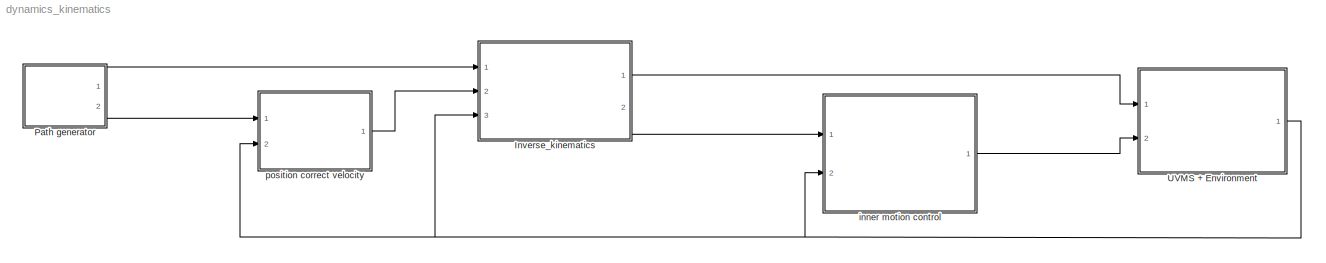
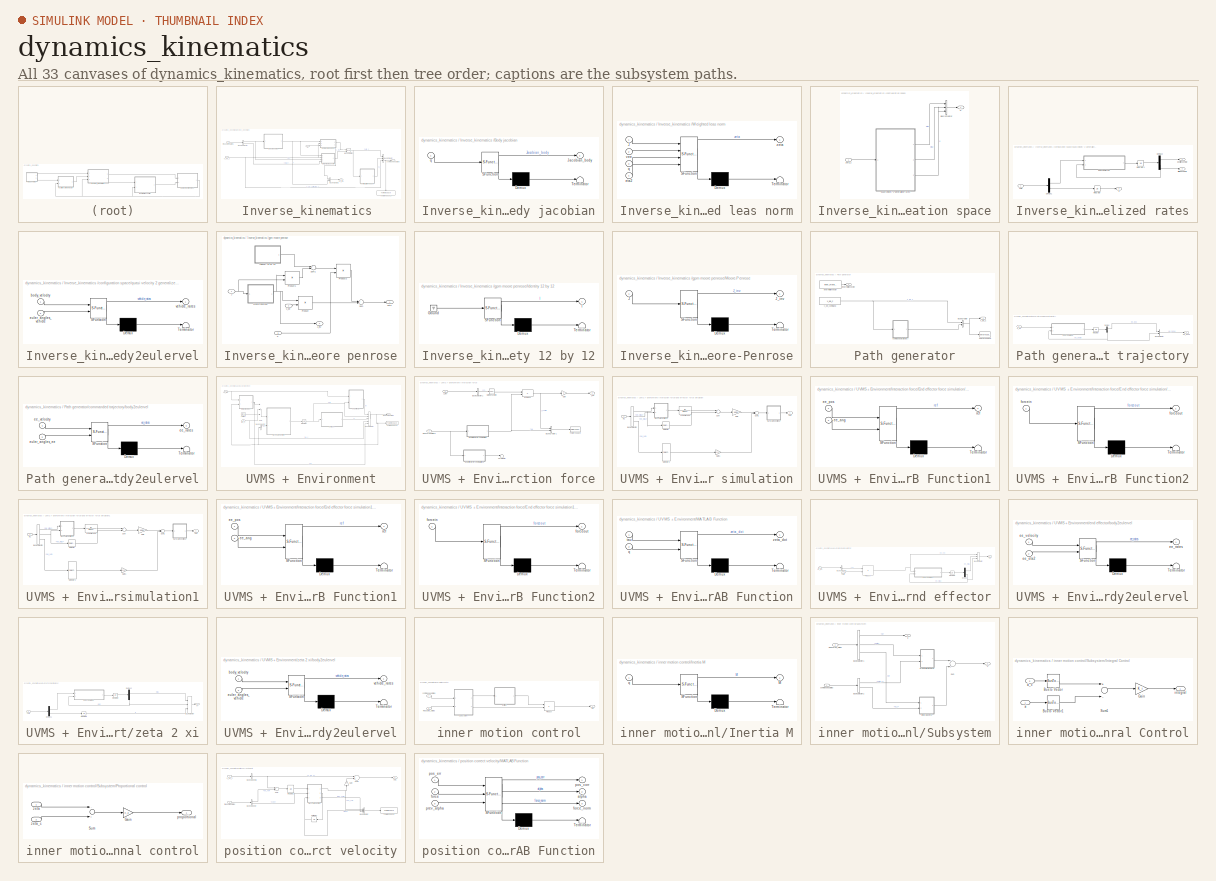
[diagram: thumbnail index - all 33 canvases of the model, root first then tree order]
MODEL dynamics_kinematics
KIND model
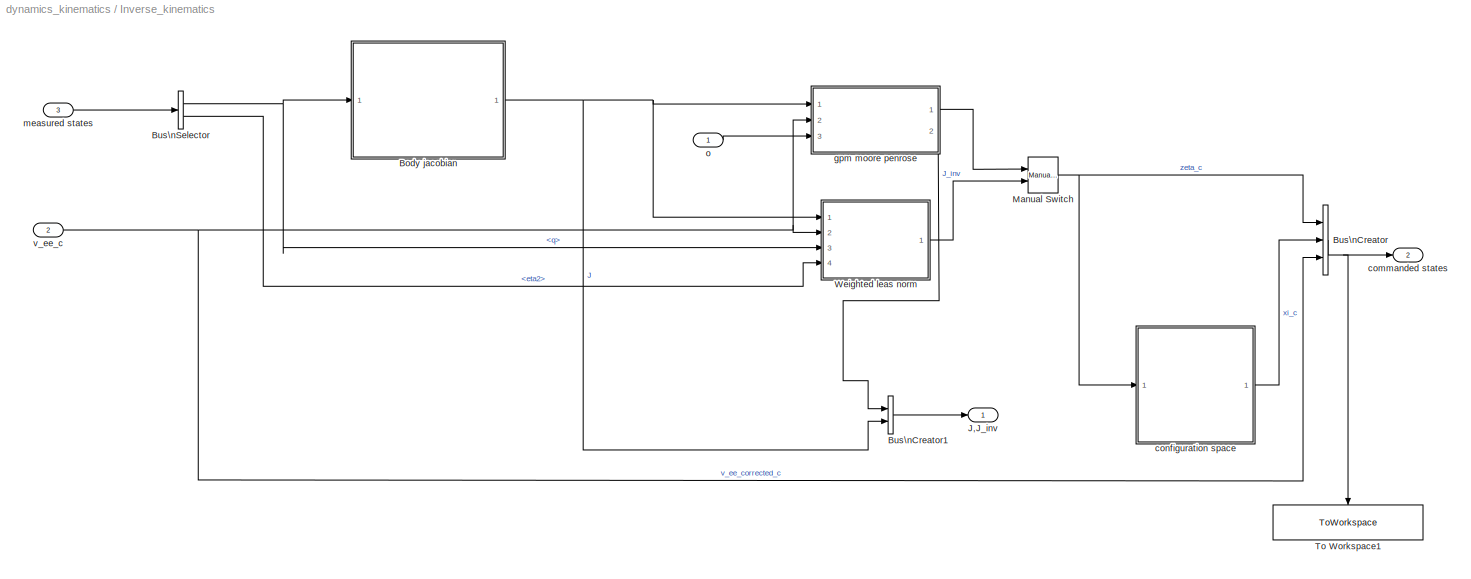
BLOCK [SubSystem] Inverse_kinematics 
  FunctionWithSeparateData = off
  MaskHideContents = off
  MinAlgLoopOccurrences = off
  Opaque = off
  Ports = [3, 2]
  PropExecContextOutsideSubsystem = off
  RTWSystemCode = Auto
  RequestExecContextInheritance = off
  SID = 111
BLOCK [SubSystem] Inverse_kinematics /Body jacobian
  ErrorFcn = Stateflow.Translate.translate
  FunctionWithSeparateData = off
  MaskDescription = Embedded MATLAB block
  MaskDisplay = bgColor = Simulink.Root.ColorString2Rgb(get_param(gcbh, 'BackgroundColor')); image(imread('private/eml_membrane_16.png','png','BackgroundColor',bgColor(1:3)),'center'); disp([10 10 'fcn']);  <repeated x10 — deduplicated; at blocks: Body jacobian, body2eulervel, MATLAB Function1, MATLAB Function2, MATLAB Function>
  MaskHideContents = off
  MaskIconFrame = on
  MaskIconOpaque = off
  MaskIconRotate = none
  MaskIconUnits = normalized
  MaskPortRotate = default
  MaskSelfModifiable = on
  MaskType = Stateflow
  MinAlgLoopOccurrences = off
  Opaque = off
  PermitHierarchicalResolution = ExplicitOnly
  Ports = [1, 1]
  PropExecContextOutsideSubsystem = off
  RTWSystemCode = Auto
  RequestExecContextInheritance = off
  SFBlockType = MATLAB Function
  SID = 4
  TreatAsAtomicUnit = on
BLOCK [Demux] Inverse_kinematics /Body jacobian/ Demux 
  Outputs = 1
  Ports = [1, 1]
  SID = 4::20
BLOCK [S-Function] Inverse_kinematics /Body jacobian/ SFunction 
  EnableBusSupport = on
  FunctionName = sf_sfun
  PortCounts = [1 2]
  Ports = [1, 2]
  SID = 4::19
  Tag = Stateflow S-Function dynamics_kinematics 2
BLOCK [Terminator] Inverse_kinematics /Body jacobian/ Terminator 
  SID = 4::22
BLOCK [Outport] Inverse_kinematics /Body jacobian/Jacobian_body
  IconDisplay = Port number
  SID = 4::5
BLOCK [Inport] Inverse_kinematics /Body jacobian/q
  IconDisplay = Port number
  SID = 4::1
BLOCK [BusCreator] Inverse_kinematics /Bus\nCreator
  DisplayOption = bar
  Inputs = 3
  Ports = [3, 1]
  SID = 327
BLOCK [BusCreator] Inverse_kinematics /Bus\nCreator1
  DisplayOption = bar
  Inputs = 2
  Ports = [2, 1]
  SID = 394
BLOCK [BusSelector] Inverse_kinematics /Bus\nSelector
  OutputSignals = xi.q,xi.eta2
  Ports = [1, 2]
  SID = 154
BLOCK [Outport] Inverse_kinematics /J,J_inv
  IconDisplay = Port number
  SID = 395
BLOCK [Reference] Inverse_kinematics /Manual Switch  REF=simulink/Signal\nRouting/Manual Switch
  Ports = [2, 1]
  SID = 152
  SourceBlock = simulink/Signal\nRouting/Manual Switch
  SourceType = Manual Switch
  action = 0
  sw = 0
  varsize = off
BLOCK [ToWorkspace] Inverse_kinematics /To Workspace1
  MaxDataPoints = inf
  Ports = [1]
  SID = 427
  SampleTime = -1
  SaveFormat = Timeseries
  VariableName = commanded_states
BLOCK [SubSystem] Inverse_kinematics /Weighted leas norm
  ErrorFcn = Stateflow.Translate.translate
  FunctionWithSeparateData = off
  MaskDescription = Embedded MATLAB block
  MaskDisplay = bgColor = Simulink.Root.ColorString2Rgb(get_param(gcbh, 'BackgroundColor')); image(imread('private/eml_membrane_16.png','png','BackgroundColor',bgColor(1:3)),'center'); disp([10 10 'wln']);
  MaskHideContents = off
  MaskIconFrame = on
  MaskIconOpaque = off
  MaskIconRotate = none
  MaskIconUnits = normalized
  MaskPortRotate = default
  MaskSelfModifiable = on
  MaskType = Stateflow
  MinAlgLoopOccurrences = off
  Opaque = off
  PermitHierarchicalResolution = ExplicitOnly
  Ports = [4, 1]
  PropExecContextOutsideSubsystem = off
  RTWSystemCode = Auto
  RequestExecContextInheritance = off
  SFBlockType = MATLAB Function
  SID = 151
  TreatAsAtomicUnit = on
BLOCK [Demux] Inverse_kinematics /Weighted leas norm/ Demux 
  Outputs = 1
  Ports = [1, 1]
  SID = 151::20
BLOCK [S-Function] Inverse_kinematics /Weighted leas norm/ SFunction 
  EnableBusSupport = on
  FunctionName = sf_sfun
  PortCounts = [4 2]
  Ports = [4, 2]
  SID = 151::19
  Tag = Stateflow S-Function dynamics_kinematics 6
BLOCK [Terminator] Inverse_kinematics /Weighted leas norm/ Terminator 
  SID = 151::22
BLOCK [Inport] Inverse_kinematics /Weighted leas norm/J
  IconDisplay = Port number
  SID = 151::1
BLOCK [Inport] Inverse_kinematics /Weighted leas norm/eta2
  IconDisplay = Port number
  Port = 4
  SID = 151::25
BLOCK [Inport] Inverse_kinematics /Weighted leas norm/q
  IconDisplay = Port number
  Port = 3
  SID = 151::24
BLOCK [Inport] Inverse_kinematics /Weighted leas norm/vee
  IconDisplay = Port number
  Port = 2
  SID = 151::23
BLOCK [Outport] Inverse_kinematics /Weighted leas norm/zeta
  IconDisplay = Port number
  SID = 151::5
BLOCK [Outport] Inverse_kinematics /commanded states
  IconDisplay = Port number
  Port = 2
  SID = 328
BLOCK [SubSystem] Inverse_kinematics /configuration space
  FunctionWithSeparateData = off
  MaskHideContents = off
  MinAlgLoopOccurrences = off
  Opaque = off
  Ports = [1, 1]
  PropExecContextOutsideSubsystem = off
  RTWSystemCode = Auto
  RequestExecContextInheritance = off
  SID = 11
BLOCK [BusCreator] Inverse_kinematics /configuration space/Bus\nCreator
  DisplayOption = bar
  Inputs = 3
  Ports = [3, 1]
  SID = 68
BLOCK [SubSystem] Inverse_kinematics /configuration space/quasi velocity 2 generalized rates
  FunctionWithSeparateData = off
  MaskHideContents = off
  MinAlgLoopOccurrences = off
  Opaque = off
  Ports = [1, 3]
  PropExecContextOutsideSubsystem = off
  RTWSystemCode = Auto
  RequestExecContextInheritance = off
  SID = 53
BLOCK [Demux] Inverse_kinematics /configuration space/quasi velocity 2 generalized rates/Demux1
  DisplayOption = bar
  Outputs = 2
  Ports = [1, 2]
  SID = 47
BLOCK [Demux] Inverse_kinematics /configuration space/quasi velocity 2 generalized rates/Demux2
  DisplayOption = bar
  Outputs = 2
  Ports = [1, 2]
  SID = 59
BLOCK [Integrator] Inverse_kinematics /configuration space/quasi velocity 2 generalized rates/Integrator
  InitialCondition = initial_q
  Ports = [1, 1]
  SID = 50
BLOCK [Integrator] Inverse_kinematics /configuration space/quasi velocity 2 generalized rates/Integrator1
  InitialCondition = initial_eta
  Ports = [1, 1]
  SID = 60
BLOCK [Outport] Inverse_kinematics /configuration space/quasi velocity 2 generalized rates/attitude vehicle
  IconDisplay = Port number
  Port = 2
  SID = 61
BLOCK [SubSystem] Inverse_kinematics /configuration space/quasi velocity 2 generalized rates/body2eulervel
  ErrorFcn = Stateflow.Translate.translate
  FunctionWithSeparateData = off
  MaskDescription = Embedded MATLAB block
  MaskHideContents = off
  MaskIconFrame = on
  MaskIconOpaque = off
  MaskIconRotate = none
  MaskIconUnits = normalized
  MaskPortRotate = default
  MaskSelfModifiable = on
  MaskType = Stateflow
  MinAlgLoopOccurrences = off
  Opaque = off
  PermitHierarchicalResolution = ExplicitOnly
  Ports = [2, 1]
  PropExecContextOutsideSubsystem = off
  RTWSystemCode = Auto
  RequestExecContextInheritance = off
  SFBlockType = MATLAB Function
  SID = 52
  TreatAsAtomicUnit = on
BLOCK [Demux] Inverse_kinematics /configuration space/quasi velocity 2 generalized rates/body2eulervel/ Demux 
  Outputs = 1
  Ports = [1, 1]
  SID = 52::20
BLOCK [S-Function] Inverse_kinematics /configuration space/quasi velocity 2 generalized rates/body2eulervel/ SFunction 
  EnableBusSupport = on
  FunctionName = sf_sfun
  PortCounts = [2 2]
  Ports = [2, 2]
  SID = 52::19
  Tag = Stateflow S-Function dynamics_kinematics 3
BLOCK [Terminator] Inverse_kinematics /configuration space/quasi velocity 2 generalized rates/body2eulervel/ Terminator 
  SID = 52::22
BLOCK [Inport] Inverse_kinematics /configuration space/quasi velocity 2 generalized rates/body2eulervel/body_velocity
  IconDisplay = Port number
  SID = 52::1
BLOCK [Inport] Inverse_kinematics /configuration space/quasi velocity 2 generalized rates/body2eulervel/euler_angles_vehicle
  IconDisplay = Port number
  Port = 2
  SID = 52::23
BLOCK [Outport] Inverse_kinematics /configuration space/quasi velocity 2 generalized rates/body2eulervel/vehicle_rates
  IconDisplay = Port number
  SID = 52::5
BLOCK [Outport] Inverse_kinematics /configuration space/quasi velocity 2 generalized rates/position vehicle
  IconDisplay = Port number
  SID = 54
BLOCK [Outport] Inverse_kinematics /configuration space/quasi velocity 2 generalized rates/q
  IconDisplay = Port number
  Port = 3
  SID = 58
BLOCK [Inport] Inverse_kinematics /configuration space/quasi velocity 2 generalized rates/zeta
  IconDisplay = Port number
  SID = 130
BLOCK [Outport] Inverse_kinematics /configuration space/xi
  IconDisplay = Port number
  SID = 69
BLOCK [Inport] Inverse_kinematics /configuration space/zeta_c
  IconDisplay = Port number
  SID = 131
BLOCK [SubSystem] Inverse_kinematics /gpm moore penrose
  FunctionWithSeparateData = off
  MaskHideContents = off
  MinAlgLoopOccurrences = off
  Opaque = off
  Ports = [3, 2]
  PropExecContextOutsideSubsystem = off
  RTWSystemCode = Auto
  RequestExecContextInheritance = off
  SID = 146
BLOCK [SubSystem] Inverse_kinematics /gpm moore penrose/Identity 12 by 12
  ErrorFcn = Stateflow.Translate.translate
  FunctionWithSeparateData = off
  MaskDescription = Embedded MATLAB block
  MaskDisplay = bgColor = Simulink.Root.ColorString2Rgb(get_param(gcbh, 'BackgroundColor')); image(imread('private/eml_membrane_16.png','png','BackgroundColor',bgColor(1:3)),'center'); disp([10 10 'Identity_mat']);
  MaskHideContents = off
  MaskIconFrame = on
  MaskIconOpaque = off
  MaskIconRotate = none
  MaskIconUnits = normalized
  MaskPortRotate = default
  MaskSelfModifiable = on
  MaskType = Stateflow
  MinAlgLoopOccurrences = off
  Opaque = off
  PermitHierarchicalResolution = ExplicitOnly
  Ports = [0, 1]
  PropExecContextOutsideSubsystem = off
  RTWSystemCode = Auto
  RequestExecContextInheritance = off
  SFBlockType = MATLAB Function
  SID = 106
  TreatAsAtomicUnit = on
BLOCK [Demux] Inverse_kinematics /gpm moore penrose/Identity 12 by 12/ Demux 
  Outputs = 1
  Ports = [1, 1]
  SID = 106::20
BLOCK [Ground] Inverse_kinematics /gpm moore penrose/Identity 12 by 12/ Ground 
  SID = 106::23
BLOCK [S-Function] Inverse_kinematics /gpm moore penrose/Identity 12 by 12/ SFunction 
  EnableBusSupport = on
  FunctionName = sf_sfun
  PortCounts = [1 2]
  Ports = [1, 2]
  SID = 106::19
  Tag = Stateflow S-Function dynamics_kinematics 1
BLOCK [Terminator] Inverse_kinematics /gpm moore penrose/Identity 12 by 12/ Terminator 
  SID = 106::22
BLOCK [Outport] Inverse_kinematics /gpm moore penrose/Identity 12 by 12/I
  IconDisplay = Port number
  SID = 106::5
BLOCK [Inport] Inverse_kinematics /gpm moore penrose/J
  IconDisplay = Port number
  SID = 147
BLOCK [Outport] Inverse_kinematics /gpm moore penrose/J_inv
  IconDisplay = Port number
  Port = 2
  SID = 393
BLOCK [SubSystem] Inverse_kinematics /gpm moore penrose/Moore-Penrose
  ErrorFcn = Stateflow.Translate.translate
  FunctionWithSeparateData = off
  MaskDescription = Embedded MATLAB block
  MaskDisplay = bgColor = Simulink.Root.ColorString2Rgb(get_param(gcbh, 'BackgroundColor')); image(imread('private/eml_membrane_16.png','png','BackgroundColor',bgColor(1:3)),'center'); disp([10 10 'moore_penrose']);
  MaskHideContents = off
  MaskIconFrame = on
  MaskIconOpaque = off
  MaskIconRotate = none
  MaskIconUnits = normalized
  MaskPortRotate = default
  MaskSelfModifiable = on
  MaskType = Stateflow
  MinAlgLoopOccurrences = off
  Opaque = off
  PermitHierarchicalResolution = ExplicitOnly
  Ports = [1, 1]
  PropExecContextOutsideSubsystem = off
  RTWSystemCode = Auto
  RequestExecContextInheritance = off
  SFBlockType = MATLAB Function
  SID = 102
  TreatAsAtomicUnit = on
BLOCK [Demux] Inverse_kinematics /gpm moore penrose/Moore-Penrose/ Demux 
  Outputs = 1
  Ports = [1, 1]
  SID = 102::20
BLOCK [S-Function] Inverse_kinematics /gpm moore penrose/Moore-Penrose/ SFunction 
  EnableBusSupport = on
  FunctionName = sf_sfun
  PortCounts = [1 2]
  Ports = [1, 2]
  SID = 102::19
  Tag = Stateflow S-Function dynamics_kinematics 4
BLOCK [Terminator] Inverse_kinematics /gpm moore penrose/Moore-Penrose/ Terminator 
  SID = 102::22
BLOCK [Inport] Inverse_kinematics /gpm moore penrose/Moore-Penrose/J
  IconDisplay = Port number
  SID = 102::1
BLOCK [Outport] Inverse_kinematics /gpm moore penrose/Moore-Penrose/J_inv
  IconDisplay = Port number
  SID = 102::5
BLOCK [Product] Inverse_kinematics /gpm moore penrose/Product
  InputSameDT = off
  Multiplication = Matrix(*)
  OutDataTypeStr = Inherit: Inherit via internal rule
  Ports = [2, 1]
  SID = 104
  SaturateOnIntegerOverflow = off
BLOCK [Product] Inverse_kinematics /gpm moore penrose/Product1
  InputSameDT = off
  Multiplication = Matrix(*)
  OutDataTypeStr = Inherit: Inherit via internal rule
  Ports = [2, 1]
  SID = 108
  SaturateOnIntegerOverflow = off
BLOCK [Product] Inverse_kinematics /gpm moore penrose/Product2
  InputSameDT = off
  Multiplication = Matrix(*)
  OutDataTypeStr = Inherit: Inherit via internal rule
  Ports = [2, 1]
  SID = 109
  SaturateOnIntegerOverflow = off
BLOCK [Sum] Inverse_kinematics /gpm moore penrose/Sum
  InputSameDT = off
  OutDataTypeStr = Inherit: Inherit via internal rule
  Ports = [2, 1]
  SID = 105
  SaturateOnIntegerOverflow = off
BLOCK [Sum] Inverse_kinematics /gpm moore penrose/Sum1
  InputSameDT = off
  Inputs = +-
  OutDataTypeStr = Inherit: Inherit via internal rule
  Ports = [2, 1]
  SID = 107
  SaturateOnIntegerOverflow = off
BLOCK [Inport] Inverse_kinematics /gpm moore penrose/o
  IconDisplay = Port number
  Port = 3
  SID = 149
BLOCK [Inport] Inverse_kinematics /gpm moore penrose/v_ee
  IconDisplay = Port number
  Port = 2
  SID = 148
BLOCK [Outport] Inverse_kinematics /gpm moore penrose/zeta
  IconDisplay = Port number
  SID = 150
BLOCK [Inport] Inverse_kinematics /measured states
  IconDisplay = Port number
  Port = 3
  SID = 153
BLOCK [Inport] Inverse_kinematics /o
  IconDisplay = Port number
  SID = 117
BLOCK [Inport] Inverse_kinematics /v_ee_c
  IconDisplay = Port number
  Port = 2
  SID = 222
BLOCK [SubSystem] Path generator
  FunctionWithSeparateData = off
  MaskHideContents = off
  MinAlgLoopOccurrences = off
  Opaque = off
  Ports = [0, 2]
  PropExecContextOutsideSubsystem = off
  RTWSystemCode = Auto
  RequestExecContextInheritance = off
  SID = 165
BLOCK [BusCreator] Path generator/Bus\nCreator
  DisplayOption = bar
  Inputs = 2
  Ports = [2, 1]
  SID = 428
BLOCK [Constant] Path generator/Inner motion vector
  SID = 115
  Value = inner_motion_vec
BLOCK [ToWorkspace] Path generator/To Workspace
  MaxDataPoints = inf
  Ports = [1]
  SID = 432
  SampleTime = -1
  SaveFormat = Timeseries
  VariableName = path_c
BLOCK [SubSystem] Path generator/commanded trajectory
  FunctionWithSeparateData = off
  MaskHideContents = off
  MinAlgLoopOccurrences = off
  Opaque = off
  Ports = [1, 1]
  PropExecContextOutsideSubsystem = off
  RTWSystemCode = Auto
  RequestExecContextInheritance = off
  SID = 175
BLOCK [BusCreator] Path generator/commanded trajectory/Bus\nCreator
  DisplayOption = bar
  Inputs = 2
  Ports = [2, 1]
  SID = 333
BLOCK [Demux] Path generator/commanded trajectory/Demux
  DisplayOption = bar
  Outputs = 2
  Ports = [1, 2]
  SID = 177
BLOCK [Integrator] Path generator/commanded trajectory/Integrator
  InitialCondition = initial_ee_eta
  Ports = [1, 1]
  SID = 178
BLOCK [SubSystem] Path generator/commanded trajectory/body2eulervel
  ErrorFcn = Stateflow.Translate.translate
  FunctionWithSeparateData = off
  MaskDescription = Embedded MATLAB block
  MaskHideContents = off
  MaskIconFrame = on
  MaskIconOpaque = off
  MaskIconRotate = none
  MaskIconUnits = normalized
  MaskPortRotate = default
  MaskSelfModifiable = on
  MaskType = Stateflow
  MinAlgLoopOccurrences = off
  Opaque = off
  PermitHierarchicalResolution = ExplicitOnly
  Ports = [2, 1]
  PropExecContextOutsideSubsystem = off
  RTWSystemCode = Auto
  RequestExecContextInheritance = off
  SFBlockType = MATLAB Function
  SID = 182
  TreatAsAtomicUnit = on
BLOCK [Demux] Path generator/commanded trajectory/body2eulervel/ Demux 
  Outputs = 1
  Ports = [1, 1]
  SID = 182::20
BLOCK [S-Function] Path generator/commanded trajectory/body2eulervel/ SFunction 
  EnableBusSupport = on
  FunctionName = sf_sfun
  PortCounts = [2 2]
  Ports = [2, 2]
  SID = 182::19
  Tag = Stateflow S-Function dynamics_kinematics 7
BLOCK [Terminator] Path generator/commanded trajectory/body2eulervel/ Terminator 
  SID = 182::22
BLOCK [Outport] Path generator/commanded trajectory/body2eulervel/ee_rates
  IconDisplay = Port number
  SID = 182::5
BLOCK [Inport] Path generator/commanded trajectory/body2eulervel/ee_velocity
  IconDisplay = Port number
  SID = 182::1
BLOCK [Inport] Path generator/commanded trajectory/body2eulervel/euler_angles_ee
  IconDisplay = Port number
  Port = 2
  SID = 182::23
BLOCK [Outport] Path generator/commanded trajectory/ee_pose
  IconDisplay = Port number
  SID = 334
BLOCK [Inport] Path generator/commanded trajectory/v_ee
  IconDisplay = Port number
  SID = 176
BLOCK [Outport] Path generator/inner motion vector
  IconDisplay = Port number
  SID = 167
BLOCK [Outport] Path generator/v_ee_c
  IconDisplay = Port number
  Port = 2
  SID = 166
BLOCK [Constant] Path generator/v_ee_command
  SID = 103
  Value = v_ee_c
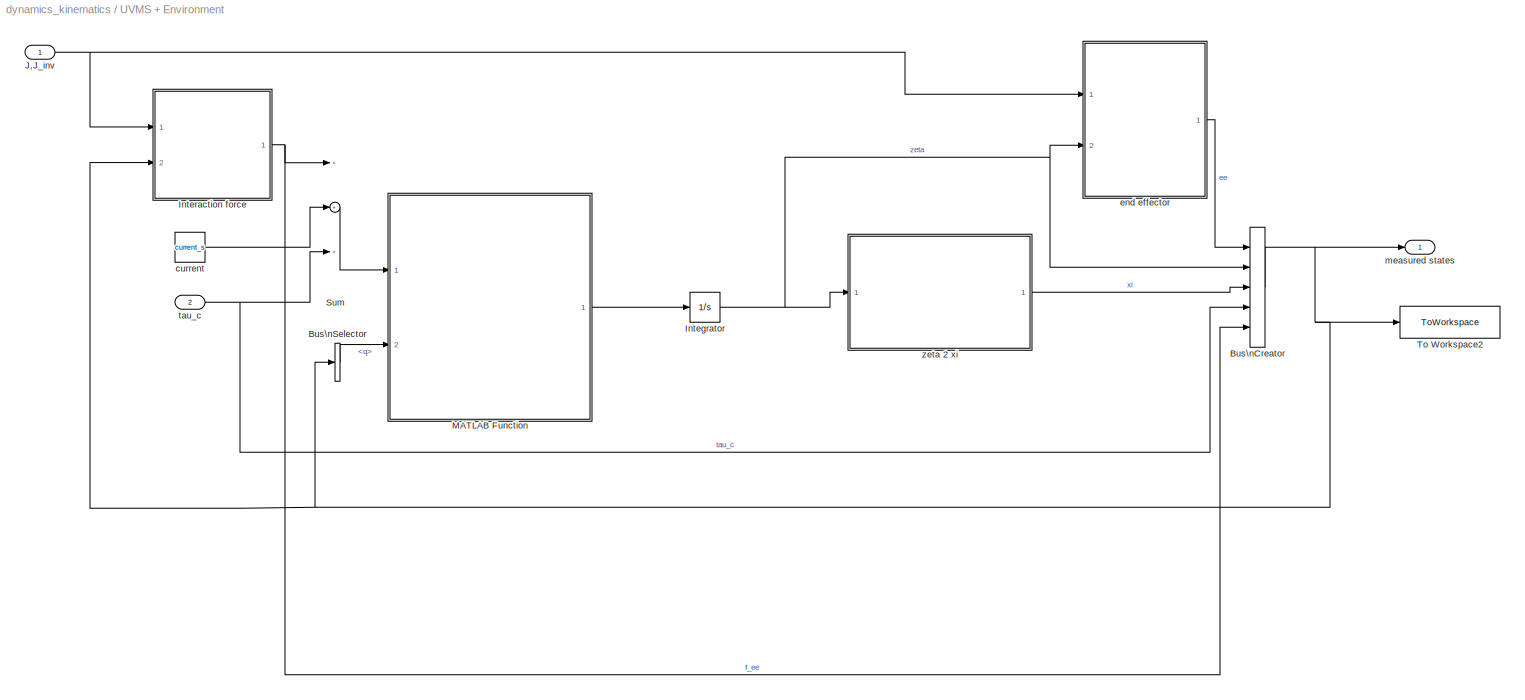
BLOCK [SubSystem] UVMS + Environment
  FunctionWithSeparateData = off
  MaskHideContents = off
  MinAlgLoopOccurrences = off
  Opaque = off
  Ports = [2, 1]
  PropExecContextOutsideSubsystem = off
  RTWSystemCode = Auto
  RequestExecContextInheritance = off
  SID = 236
BLOCK [BusCreator] UVMS + Environment/Bus\nCreator
  DisplayOption = bar
  Inputs = 5
  Ports = [5, 1]
  SID = 322
BLOCK [BusSelector] UVMS + Environment/Bus\nSelector
  OutputSignals = xi.q
  Ports = [1, 1]
  SID = 277
BLOCK [Integrator] UVMS + Environment/Integrator
  Ports = [1, 1]
  SID = 241
BLOCK [SubSystem] UVMS + Environment/Interaction force
  FunctionWithSeparateData = off
  MaskHideContents = off
  MinAlgLoopOccurrences = off
  Opaque = off
  Ports = [2, 1]
  PropExecContextOutsideSubsystem = off
  RTWSystemCode = Auto
  RequestExecContextInheritance = off
  SID = 419
BLOCK [BusCreator] UVMS + Environment/Interaction force/Bus\nCreator1
  DisplayOption = bar
  Inputs = 2
  Ports = [2, 1]
  SID = 439
BLOCK [BusSelector] UVMS + Environment/Interaction force/Bus\nSelector1
  OutputSignals = J
  Ports = [1, 1]
  SID = 436
BLOCK [SubSystem] UVMS + Environment/Interaction force/End effector force simulation
  FunctionWithSeparateData = off
  MaskHideContents = off
  MinAlgLoopOccurrences = off
  Opaque = off
  Ports = [1, 1]
  PropExecContextOutsideSubsystem = off
  RTWSystemCode = Auto
  RequestExecContextInheritance = off
  SID = 451
BLOCK [BusSelector] UVMS + Environment/Interaction force/End effector force simulation/Bus\nSelector
  OutputSignals = ee.ee_eta1,ee.ee_eta2,ee.ee_vel
  Ports = [1, 3]
  SID = 434
BLOCK [Gain] UVMS + Environment/Interaction force/End effector force simulation/Gain
  Gain = 1000
  OutDataTypeStr = Inherit: Inherit via internal rule
  ParamDataTypeStr = Inherit: Inherit via internal rule
  SID = 468
  SaturateOnIntegerOverflow = off
BLOCK [Gain] UVMS + Environment/Interaction force/End effector force simulation/Gain1
  Gain = -100
  OutDataTypeStr = Inherit: Inherit via internal rule
  ParamDataTypeStr = Inherit: Inherit via internal rule
  SID = 474
  SaturateOnIntegerOverflow = off
BLOCK [Inport] UVMS + Environment/Interaction force/End effector force simulation/In1
  IconDisplay = Port number
  SID = 452
BLOCK [SubSystem] UVMS + Environment/Interaction force/End effector force simulation/MATLAB Function1
  ErrorFcn = Stateflow.Translate.translate
  FunctionWithSeparateData = off
  MaskDescription = Embedded MATLAB block
  MaskHideContents = off
  MaskIconFrame = on
  MaskIconOpaque = off
  MaskIconRotate = none
  MaskIconUnits = normalized
  MaskPortRotate = default
  MaskSelfModifiable = on
  MaskType = Stateflow
  MinAlgLoopOccurrences = off
  Opaque = off
  PermitHierarchicalResolution = ExplicitOnly
  Ports = [2, 1]
  PropExecContextOutsideSubsystem = off
  RTWSystemCode = Auto
  RequestExecContextInheritance = off
  SFBlockType = MATLAB Function
  SID = 456
  TreatAsAtomicUnit = on
BLOCK [Demux] UVMS + Environment/Interaction force/End effector force simulation/MATLAB Function1/ Demux 
  Outputs = 1
  Ports = [1, 1]
  SID = 456::20
BLOCK [S-Function] UVMS + Environment/Interaction force/End effector force simulation/MATLAB Function1/ SFunction 
  EnableBusSupport = on
  FunctionName = sf_sfun
  PortCounts = [2 2]
  Ports = [2, 2]
  SID = 456::19
  Tag = Stateflow S-Function dynamics_kinematics 13
BLOCK [Terminator] UVMS + Environment/Interaction force/End effector force simulation/MATLAB Function1/ Terminator 
  SID = 456::22
BLOCK [Inport] UVMS + Environment/Interaction force/End effector force simulation/MATLAB Function1/ee_ang
  IconDisplay = Port number
  Port = 2
  SID = 456::28
BLOCK [Inport] UVMS + Environment/Interaction force/End effector force simulation/MATLAB Function1/ee_pos
  IconDisplay = Port number
  SID = 456::25
BLOCK [Outport] UVMS + Environment/Interaction force/End effector force simulation/MATLAB Function1/ref
  IconDisplay = Port number
  SID = 456::27
BLOCK [SubSystem] UVMS + Environment/Interaction force/End effector force simulation/MATLAB Function2
  ErrorFcn = Stateflow.Translate.translate
  FunctionWithSeparateData = off
  MaskDescription = Embedded MATLAB block
  MaskHideContents = off
  MaskIconFrame = on
  MaskIconOpaque = off
  MaskIconRotate = none
  MaskIconUnits = normalized
  MaskPortRotate = default
  MaskSelfModifiable = on
  MaskType = Stateflow
  MinAlgLoopOccurrences = off
  Opaque = off
  PermitHierarchicalResolution = ExplicitOnly
  Ports = [1, 1]
  PropExecContextOutsideSubsystem = off
  RTWSystemCode = Auto
  RequestExecContextInheritance = off
  SFBlockType = MATLAB Function
  SID = 475
  TreatAsAtomicUnit = on
BLOCK [Demux] UVMS + Environment/Interaction force/End effector force simulation/MATLAB Function2/ Demux 
  Outputs = 1
  Ports = [1, 1]
  SID = 475::20
BLOCK [S-Function] UVMS + Environment/Interaction force/End effector force simulation/MATLAB Function2/ SFunction 
  EnableBusSupport = on
  FunctionName = sf_sfun
  PortCounts = [1 2]
  Ports = [1, 2]
  SID = 475::19
  Tag = Stateflow S-Function dynamics_kinematics 8
BLOCK [Terminator] UVMS + Environment/Interaction force/End effector force simulation/MATLAB Function2/ Terminator 
  SID = 475::22
BLOCK [Inport] UVMS + Environment/Interaction force/End effector force simulation/MATLAB Function2/forcein
  IconDisplay = Port number
  SID = 475::25
BLOCK [Outport] UVMS + Environment/Interaction force/End effector force simulation/MATLAB Function2/forceout
  IconDisplay = Port number
  SID = 475::27
BLOCK [Outport] UVMS + Environment/Interaction force/End effector force simulation/Out1
  IconDisplay = Port number
  SID = 453
BLOCK [Selector] UVMS + Environment/Interaction force/End effector force simulation/Selector
  IndexOptions = Index vector (dialog)
  Indices = [2]
  InputPortWidth = 3
  OutputSizes = 1
  Ports = [1, 1]
  SID = 472
BLOCK [Selector] UVMS + Environment/Interaction force/End effector force simulation/Selector1
  IndexOptions = Index vector (dialog)
  Indices = 2
  InputPortWidth = 6
  OutputSizes = 1
  Ports = [1, 1]
  SID = 473
BLOCK [Sum] UVMS + Environment/Interaction force/End effector force simulation/Sum
  InputSameDT = off
  Inputs = +-
  OutDataTypeStr = Inherit: Inherit via internal rule
  Ports = [2, 1]
  SID = 459
  SaturateOnIntegerOverflow = off
BLOCK [Sum] UVMS + Environment/Interaction force/End effector force simulation/Sum1
  InputSameDT = off
  OutDataTypeStr = Inherit: Inherit via internal rule
  Ports = [2, 1]
  SID = 470
  SaturateOnIntegerOverflow = off
BLOCK [TransferFcn] UVMS + Environment/Interaction force/End effector force simulation/Transfer Fcn
  Denominator = [0.05 1]
  SID = 458
BLOCK [SubSystem] UVMS + Environment/Interaction force/End effector force simulation1
  FunctionWithSeparateData = off
  MaskHideContents = off
  MinAlgLoopOccurrences = off
  Opaque = off
  Ports = [1, 1]
  PropExecContextOutsideSubsystem = off
  RTWSystemCode = Auto
  RequestExecContextInheritance = off
  SID = 485
BLOCK [BusSelector] UVMS + Environment/Interaction force/End effector force simulation1/Bus\nSelector
  OutputSignals = ee.ee_eta1,ee.ee_eta2,ee.ee_vel
  Ports = [1, 3]
  SID = 487
BLOCK [Gain] UVMS + Environment/Interaction force/End effector force simulation1/Gain
  Gain = 1000
  OutDataTypeStr = Inherit: Inherit via internal rule
  ParamDataTypeStr = Inherit: Inherit via internal rule
  SID = 488
  SaturateOnIntegerOverflow = off
BLOCK [Gain] UVMS + Environment/Interaction force/End effector force simulation1/Gain1
  Gain = -100
  OutDataTypeStr = Inherit: Inherit via internal rule
  ParamDataTypeStr = Inherit: Inherit via internal rule
  SID = 489
  SaturateOnIntegerOverflow = off
BLOCK [Inport] UVMS + Environment/Interaction force/End effector force simulation1/In1
  IconDisplay = Port number
  SID = 486
BLOCK [SubSystem] UVMS + Environment/Interaction force/End effector force simulation1/MATLAB Function1
  ErrorFcn = Stateflow.Translate.translate
  FunctionWithSeparateData = off
  MaskDescription = Embedded MATLAB block
  MaskHideContents = off
  MaskIconFrame = on
  MaskIconOpaque = off
  MaskIconRotate = none
  MaskIconUnits = normalized
  MaskPortRotate = default
  MaskSelfModifiable = on
  MaskType = Stateflow
  MinAlgLoopOccurrences = off
  Opaque = off
  PermitHierarchicalResolution = ExplicitOnly
  Ports = [2, 1]
  PropExecContextOutsideSubsystem = off
  RTWSystemCode = Auto
  RequestExecContextInheritance = off
  SFBlockType = MATLAB Function
  SID = 490
  TreatAsAtomicUnit = on
BLOCK [Demux] UVMS + Environment/Interaction force/End effector force simulation1/MATLAB Function1/ Demux 
  Outputs = 1
  Ports = [1, 1]
  SID = 490::20
BLOCK [S-Function] UVMS + Environment/Interaction force/End effector force simulation1/MATLAB Function1/ SFunction 
  EnableBusSupport = on
  FunctionName = sf_sfun
  PortCounts = [2 2]
  Ports = [2, 2]
  SID = 490::19
  Tag = Stateflow S-Function dynamics_kinematics 12
BLOCK [Terminator] UVMS + Environment/Interaction force/End effector force simulation1/MATLAB Function1/ Terminator 
  SID = 490::22
BLOCK [Inport] UVMS + Environment/Interaction force/End effector force simulation1/MATLAB Function1/ee_ang
  IconDisplay = Port number
  Port = 2
  SID = 490::28
BLOCK [Inport] UVMS + Environment/Interaction force/End effector force simulation1/MATLAB Function1/ee_pos
  IconDisplay = Port number
  SID = 490::25
BLOCK [Outport] UVMS + Environment/Interaction force/End effector force simulation1/MATLAB Function1/ref
  IconDisplay = Port number
  SID = 490::27
BLOCK [SubSystem] UVMS + Environment/Interaction force/End effector force simulation1/MATLAB Function2
  ErrorFcn = Stateflow.Translate.translate
  FunctionWithSeparateData = off
  MaskDescription = Embedded MATLAB block
  MaskHideContents = off
  MaskIconFrame = on
  MaskIconOpaque = off
  MaskIconRotate = none
  MaskIconUnits = normalized
  MaskPortRotate = default
  MaskSelfModifiable = on
  MaskType = Stateflow
  MinAlgLoopOccurrences = off
  Opaque = off
  PermitHierarchicalResolution = ExplicitOnly
  Ports = [1, 1]
  PropExecContextOutsideSubsystem = off
  RTWSystemCode = Auto
  RequestExecContextInheritance = off
  SFBlockType = MATLAB Function
  SID = 491
  TreatAsAtomicUnit = on
BLOCK [Demux] UVMS + Environment/Interaction force/End effector force simulation1/MATLAB Function2/ Demux 
  Outputs = 1
  Ports = [1, 1]
  SID = 491::20
BLOCK [S-Function] UVMS + Environment/Interaction force/End effector force simulation1/MATLAB Function2/ SFunction 
  EnableBusSupport = on
  FunctionName = sf_sfun
  PortCounts = [1 2]
  Ports = [1, 2]
  SID = 491::19
  Tag = Stateflow S-Function dynamics_kinematics 15
BLOCK [Terminator] UVMS + Environment/Interaction force/End effector force simulation1/MATLAB Function2/ Terminator 
  SID = 491::22
BLOCK [Inport] UVMS + Environment/Interaction force/End effector force simulation1/MATLAB Function2/forcein
  IconDisplay = Port number
  SID = 491::25
BLOCK [Outport] UVMS + Environment/Interaction force/End effector force simulation1/MATLAB Function2/forceout
  IconDisplay = Port number
  SID = 491::27
BLOCK [Outport] UVMS + Environment/Interaction force/End effector force simulation1/Out1
  IconDisplay = Port number
  SID = 497
BLOCK [Selector] UVMS + Environment/Interaction force/End effector force simulation1/Selector
  IndexOptions = Index vector (dialog)
  Indices = [3]
  InputPortWidth = 3
  OutputSizes = 1
  Ports = [1, 1]
  SID = 492
BLOCK [Selector] UVMS + Environment/Interaction force/End effector force simulation1/Selector1
  IndexOptions = Index vector (dialog)
  Indices = 6
  InputPortWidth = 6
  OutputSizes = 1
  Ports = [1, 1]
  SID = 493
BLOCK [Sum] UVMS + Environment/Interaction force/End effector force simulation1/Sum
  InputSameDT = off
  Inputs = +-
  OutDataTypeStr = Inherit: Inherit via internal rule
  Ports = [2, 1]
  SID = 494
  SaturateOnIntegerOverflow = off
BLOCK [Sum] UVMS + Environment/Interaction force/End effector force simulation1/Sum1
  InputSameDT = off
  OutDataTypeStr = Inherit: Inherit via internal rule
  Ports = [2, 1]
  SID = 495
  SaturateOnIntegerOverflow = off
BLOCK [TransferFcn] UVMS + Environment/Interaction force/End effector force simulation1/Transfer Fcn
  Denominator = [0.05 1]
  SID = 496
BLOCK [Gain] UVMS + Environment/Interaction force/Gain
  OutDataTypeStr = Inherit: Inherit via internal rule
  ParamDataTypeStr = Inherit: Inherit via internal rule
  SID = 447
  SaturateOnIntegerOverflow = off
BLOCK [Inport] UVMS + Environment/Interaction force/J,Jinv
  IconDisplay = Port number
  SID = 420
BLOCK [Math] UVMS + Environment/Interaction force/Math\nFunction
  Operator = transpose
  Ports = [1, 1]
  SID = 438
BLOCK [Product] UVMS + Environment/Interaction force/Product
  InputSameDT = off
  Multiplication = Matrix(*)
  OutDataTypeStr = Inherit: Inherit via internal rule
  Ports = [2, 1]
  SID = 437
  SaturateOnIntegerOverflow = off
BLOCK [Terminator] UVMS + Environment/Interaction force/Terminator
  SID = 498
BLOCK [ToWorkspace] UVMS + Environment/Interaction force/To Workspace
  MaxDataPoints = inf
  Ports = [1]
  SID = 441
  SampleTime = -1
  SaveFormat = Timeseries
  VariableName = force_ee
BLOCK [Outport] UVMS + Environment/Interaction force/f_ee
  IconDisplay = Port number
  SID = 435
BLOCK [Inport] UVMS + Environment/Interaction force/measured states1
  IconDisplay = Port number
  Port = 2
  SID = 422
BLOCK [Inport] UVMS + Environment/J,J_inv
  IconDisplay = Port number
  SID = 299
BLOCK [SubSystem] UVMS + Environment/MATLAB Function
  ErrorFcn = Stateflow.Translate.translate
  FunctionWithSeparateData = off
  MaskDescription = Embedded MATLAB block
  MaskDisplay = bgColor = Simulink.Root.ColorString2Rgb(get_param(gcbh, 'BackgroundColor')); image(imread('private/eml_membrane_16.png','png','BackgroundColor',bgColor(1:3)),'center'); disp([10 10 'tau2acceleration']);
  MaskHideContents = off
  MaskIconFrame = on
  MaskIconOpaque = off
  MaskIconRotate = none
  MaskIconUnits = normalized
  MaskPortRotate = default
  MaskSelfModifiable = on
  MaskType = Stateflow
  MinAlgLoopOccurrences = off
  Opaque = off
  PermitHierarchicalResolution = ExplicitOnly
  Ports = [2, 1]
  PropExecContextOutsideSubsystem = off
  RTWSystemCode = Auto
  RequestExecContextInheritance = off
  SFBlockType = MATLAB Function
  SID = 240
  TreatAsAtomicUnit = on
BLOCK [Demux] UVMS + Environment/MATLAB Function/ Demux 
  Outputs = 1
  Ports = [1, 1]
  SID = 240::20
BLOCK [S-Function] UVMS + Environment/MATLAB Function/ SFunction 
  EnableBusSupport = on
  FunctionName = sf_sfun
  PortCounts = [2 2]
  Ports = [2, 2]
  SID = 240::19
  Tag = Stateflow S-Function dynamics_kinematics 9
BLOCK [Terminator] UVMS + Environment/MATLAB Function/ Terminator 
  SID = 240::22
BLOCK [Inport] UVMS + Environment/MATLAB Function/q
  IconDisplay = Port number
  Port = 2
  SID = 240::23
BLOCK [Inport] UVMS + Environment/MATLAB Function/tau
  IconDisplay = Port number
  SID = 240::1
BLOCK [Outport] UVMS + Environment/MATLAB Function/zeta_dot
  IconDisplay = Port number
  SID = 240::5
BLOCK [Sum] UVMS + Environment/Sum
  InputSameDT = off
  Inputs = +++
  OutDataTypeStr = Inherit: Inherit via internal rule
  Ports = [3, 1]
  SID = 379
  SaturateOnIntegerOverflow = off
BLOCK [ToWorkspace] UVMS + Environment/To Workspace2
  MaxDataPoints = inf
  Ports = [1]
  SID = 423
  SampleTime = -1
  SaveFormat = Timeseries
  VariableName = measured_states
BLOCK [Constant] UVMS + Environment/current
  SID = 380
  Value = current_s
BLOCK [SubSystem] UVMS + Environment/end effector
  FunctionWithSeparateData = off
  MaskHideContents = off
  MinAlgLoopOccurrences = off
  Opaque = off
  Ports = [2, 1]
  PropExecContextOutsideSubsystem = off
  RTWSystemCode = Auto
  RequestExecContextInheritance = off
  SID = 294
BLOCK [BusCreator] UVMS + Environment/end effector/Bus\nCreator
  DisplayOption = bar
  Inputs = 3
  Ports = [3, 1]
  SID = 316
BLOCK [BusSelector] UVMS + Environment/end effector/Bus\nSelector
  OutputSignals = J
  Ports = [1, 1]
  SID = 397
BLOCK [Demux] UVMS + Environment/end effector/Demux2
  DisplayOption = bar
  Outputs = 2
  Ports = [1, 2]
  SID = 300
BLOCK [Integrator] UVMS + Environment/end effector/Integrator2
  InitialCondition = initial_ee_eta
  Ports = [1, 1]
  SID = 301
BLOCK [Inport] UVMS + Environment/end effector/J, J_inv
  IconDisplay = Port number
  SID = 296
BLOCK [Product] UVMS + Environment/end effector/Product
  InputSameDT = off
  Multiplication = Matrix(*)
  OutDataTypeStr = Inherit: Inherit via internal rule
  Ports = [2, 1]
  SID = 297
  SaturateOnIntegerOverflow = off
BLOCK [SubSystem] UVMS + Environment/end effector/body2eulervel
  ErrorFcn = Stateflow.Translate.translate
  FunctionWithSeparateData = off
  MaskDescription = Embedded MATLAB block
  MaskHideContents = off
  MaskIconFrame = on
  MaskIconOpaque = off
  MaskIconRotate = none
  MaskIconUnits = normalized
  MaskPortRotate = default
  MaskSelfModifiable = on
  MaskType = Stateflow
  MinAlgLoopOccurrences = off
  Opaque = off
  PermitHierarchicalResolution = ExplicitOnly
  Ports = [2, 1]
  PropExecContextOutsideSubsystem = off
  RTWSystemCode = Auto
  RequestExecContextInheritance = off
  SFBlockType = MATLAB Function
  SID = 302
  TreatAsAtomicUnit = on
BLOCK [Demux] UVMS + Environment/end effector/body2eulervel/ Demux 
  Outputs = 1
  Ports = [1, 1]
  SID = 302::20
BLOCK [S-Function] UVMS + Environment/end effector/body2eulervel/ SFunction 
  EnableBusSupport = on
  FunctionName = sf_sfun
  PortCounts = [2 2]
  Ports = [2, 2]
  SID = 302::19
  Tag = Stateflow S-Function dynamics_kinematics 5
BLOCK [Terminator] UVMS + Environment/end effector/body2eulervel/ Terminator 
  SID = 302::22
BLOCK [Inport] UVMS + Environment/end effector/body2eulervel/ee_eta2
  IconDisplay = Port number
  Port = 2
  SID = 302::23
BLOCK [Outport] UVMS + Environment/end effector/body2eulervel/ee_rates
  IconDisplay = Port number
  SID = 302::5
BLOCK [Inport] UVMS + Environment/end effector/body2eulervel/ee_velocity
  IconDisplay = Port number
  SID = 302::1
BLOCK [Outport] UVMS + Environment/end effector/ee
  IconDisplay = Port number
  SID = 317
BLOCK [Inport] UVMS + Environment/end effector/zeta
  IconDisplay = Port number
  Port = 2
  SID = 295
BLOCK [Outport] UVMS + Environment/measured states
  IconDisplay = Port number
  SID = 239
BLOCK [Inport] UVMS + Environment/tau_c
  IconDisplay = Port number
  Port = 2
  SID = 237
BLOCK [SubSystem] UVMS + Environment/zeta 2 xi
  FunctionWithSeparateData = off
  MaskHideContents = off
  MinAlgLoopOccurrences = off
  Opaque = off
  Ports = [1, 1]
  PropExecContextOutsideSubsystem = off
  RTWSystemCode = Auto
  RequestExecContextInheritance = off
  SID = 260
BLOCK [BusCreator] UVMS + Environment/zeta 2 xi/Bus\nCreator
  DisplayOption = bar
  Inputs = 3
  Ports = [3, 1]
  SID = 275
BLOCK [Demux] UVMS + Environment/zeta 2 xi/Demux1
  DisplayOption = bar
  Outputs = 2
  Ports = [1, 2]
  SID = 262
BLOCK [Demux] UVMS + Environment/zeta 2 xi/Demux2
  DisplayOption = bar
  Outputs = 2
  Ports = [1, 2]
  SID = 263
BLOCK [Integrator] UVMS + Environment/zeta 2 xi/Integrator1
  InitialCondition = initial_q
  Ports = [1, 1]
  SID = 264
BLOCK [Integrator] UVMS + Environment/zeta 2 xi/Integrator2
  InitialCondition = initial_eta
  Ports = [1, 1]
  SID = 265
BLOCK [SubSystem] UVMS + Environment/zeta 2 xi/body2eulervel
  ErrorFcn = Stateflow.Translate.translate
  FunctionWithSeparateData = off
  MaskDescription = Embedded MATLAB block
  MaskHideContents = off
  MaskIconFrame = on
  MaskIconOpaque = off
  MaskIconRotate = none
  MaskIconUnits = normalized
  MaskPortRotate = default
  MaskSelfModifiable = on
  MaskType = Stateflow
  MinAlgLoopOccurrences = off
  Opaque = off
  PermitHierarchicalResolution = ExplicitOnly
  Ports = [2, 1]
  PropExecContextOutsideSubsystem = off
  RTWSystemCode = Auto
  RequestExecContextInheritance = off
  SFBlockType = MATLAB Function
  SID = 269
  TreatAsAtomicUnit = on
BLOCK [Demux] UVMS + Environment/zeta 2 xi/body2eulervel/ Demux 
  Outputs = 1
  Ports = [1, 1]
  SID = 269::20
BLOCK [S-Function] UVMS + Environment/zeta 2 xi/body2eulervel/ SFunction 
  EnableBusSupport = on
  FunctionName = sf_sfun
  PortCounts = [2 2]
  Ports = [2, 2]
  SID = 269::19
  Tag = Stateflow S-Function dynamics_kinematics 11
BLOCK [Terminator] UVMS + Environment/zeta 2 xi/body2eulervel/ Terminator 
  SID = 269::22
BLOCK [Inport] UVMS + Environment/zeta 2 xi/body2eulervel/body_velocity
  IconDisplay = Port number
  SID = 269::1
BLOCK [Inport] UVMS + Environment/zeta 2 xi/body2eulervel/euler_angles_vehicle
  IconDisplay = Port number
  Port = 2
  SID = 269::23
BLOCK [Outport] UVMS + Environment/zeta 2 xi/body2eulervel/vehicle_rates
  IconDisplay = Port number
  SID = 269::5
BLOCK [Outport] UVMS + Environment/zeta 2 xi/xi
  IconDisplay = Port number
  SID = 276
BLOCK [Inport] UVMS + Environment/zeta 2 xi/zeta
  IconDisplay = Port number
  SID = 261
BLOCK [SubSystem] inner motion control
  FunctionWithSeparateData = off
  MaskHideContents = off
  MinAlgLoopOccurrences = off
  Opaque = off
  Ports = [2, 1]
  PropExecContextOutsideSubsystem = off
  RTWSystemCode = Auto
  RequestExecContextInheritance = off
  SID = 226
BLOCK [SubSystem] inner motion control/Inertia M
  ErrorFcn = Stateflow.Translate.translate
  FunctionWithSeparateData = off
  MaskDescription = Embedded MATLAB block
  MaskDisplay = bgColor = Simulink.Root.ColorString2Rgb(get_param(gcbh, 'BackgroundColor')); image(imread('private/eml_membrane_16.png','png','BackgroundColor',bgColor(1:3)),'center'); disp([10 10 'tau2acceleration']);
  MaskHideContents = off
  MaskIconFrame = on
  MaskIconOpaque = off
  MaskIconRotate = none
  MaskIconUnits = normalized
  MaskPortRotate = default
  MaskSelfModifiable = on
  MaskType = Stateflow
  MinAlgLoopOccurrences = off
  Opaque = off
  PermitHierarchicalResolution = ExplicitOnly
  Ports = [1, 1]
  PropExecContextOutsideSubsystem = off
  RTWSystemCode = Auto
  RequestExecContextInheritance = off
  SFBlockType = MATLAB Function
  SID = 278
  TreatAsAtomicUnit = on
BLOCK [Demux] inner motion control/Inertia M/ Demux 
  Outputs = 1
  Ports = [1, 1]
  SID = 278::20
BLOCK [S-Function] inner motion control/Inertia M/ SFunction 
  EnableBusSupport = on
  FunctionName = sf_sfun
  PortCounts = [1 2]
  Ports = [1, 2]
  SID = 278::19
  Tag = Stateflow S-Function dynamics_kinematics 10
BLOCK [Terminator] inner motion control/Inertia M/ Terminator 
  SID = 278::22
BLOCK [Outport] inner motion control/Inertia M/M
  IconDisplay = Port number
  SID = 278::5
BLOCK [Inport] inner motion control/Inertia M/q
  IconDisplay = Port number
  SID = 278::23
BLOCK [Product] inner motion control/Product
  InputSameDT = off
  Multiplication = Matrix(*)
  OutDataTypeStr = Inherit: Inherit via internal rule
  Ports = [2, 1]
  SID = 283
  SaturateOnIntegerOverflow = off
BLOCK [SubSystem] inner motion control/Subsystem
  FunctionWithSeparateData = off
  MaskHideContents = off
  MinAlgLoopOccurrences = off
  Opaque = off
  Ports = [2, 2]
  PropExecContextOutsideSubsystem = off
  RTWSystemCode = Auto
  RequestExecContextInheritance = off
  SID = 344
BLOCK [BusSelector] inner motion control/Subsystem/Bus\nSelector1
  OutputSignals = xi.q,zeta,xi
  Ports = [1, 3]
  SID = 326
BLOCK [BusSelector] inner motion control/Subsystem/Bus\nSelector2
  OutputSignals = zeta_c,xi_c
  Ports = [1, 2]
  SID = 329
BLOCK [SubSystem] inner motion control/Subsystem/Integral Control
  FunctionWithSeparateData = off
  MaskHideContents = off
  MinAlgLoopOccurrences = off
  Opaque = off
  Ports = [2, 1]
  PropExecContextOutsideSubsystem = off
  RTWSystemCode = Auto
  RequestExecContextInheritance = off
  SID = 356
BLOCK [BusToVector] inner motion control/Subsystem/Integral Control/Bus to Vector
  SID = 363
BLOCK [BusToVector] inner motion control/Subsystem/Integral Control/Bus to Vector1
  SID = 364
BLOCK [Gain] inner motion control/Subsystem/Integral Control/Gain
  Gain = K_i
  Multiplication = Matrix(K*u)
  OutDataTypeStr = Inherit: Inherit via internal rule
  ParamDataTypeStr = Inherit: Inherit via internal rule
  SID = 365
  SaturateOnIntegerOverflow = off
BLOCK [Sum] inner motion control/Subsystem/Integral Control/Sum1
  InputSameDT = off
  Inputs = +-
  OutDataTypeStr = Inherit: Inherit via internal rule
  Ports = [2, 1]
  SID = 355
  SaturateOnIntegerOverflow = off
BLOCK [Outport] inner motion control/Subsystem/Integral Control/integral
  IconDisplay = Port number
  SID = 358
BLOCK [Inport] inner motion control/Subsystem/Integral Control/xi
  IconDisplay = Port number
  SID = 359
BLOCK [Inport] inner motion control/Subsystem/Integral Control/xi_c
  IconDisplay = Port number
  Port = 2
  SID = 357
BLOCK [SubSystem] inner motion control/Subsystem/Proportional control
  FunctionWithSeparateData = off
  MaskHideContents = off
  MinAlgLoopOccurrences = off
  Opaque = off
  Ports = [2, 1]
  PropExecContextOutsideSubsystem = off
  RTWSystemCode = Auto
  RequestExecContextInheritance = off
  SID = 349
BLOCK [Gain] inner motion control/Subsystem/Proportional control/Gain
  Gain = K_p
  Multiplication = Matrix(K*u)
  OutDataTypeStr = Inherit: Inherit via internal rule
  ParamDataTypeStr = Inherit: Inherit via internal rule
  SID = 281
  SaturateOnIntegerOverflow = off
BLOCK [Sum] inner motion control/Subsystem/Proportional control/Sum
  InputSameDT = off
  Inputs = -+
  OutDataTypeStr = Inherit: Inherit via internal rule
  Ports = [2, 1]
  SID = 280
  SaturateOnIntegerOverflow = off
BLOCK [Outport] inner motion control/Subsystem/Proportional control/proportional
  IconDisplay = Port number
  SID = 350
BLOCK [Inport] inner motion control/Subsystem/Proportional control/zeta
  IconDisplay = Port number
  SID = 351
BLOCK [Inport] inner motion control/Subsystem/Proportional control/zeta_c
  IconDisplay = Port number
  Port = 2
  SID = 352
BLOCK [Sum] inner motion control/Subsystem/Sum
  InputSameDT = off
  OutDataTypeStr = Inherit: Inherit via internal rule
  Ports = [2, 1]
  SID = 353
  SaturateOnIntegerOverflow = off
BLOCK [Outport] inner motion control/Subsystem/a
  IconDisplay = Port number
  Port = 2
  SID = 348
BLOCK [Inport] inner motion control/Subsystem/commanded states
  IconDisplay = Port number
  SID = 346
BLOCK [Inport] inner motion control/Subsystem/measured_states
  IconDisplay = Port number
  Port = 2
  SID = 347
BLOCK [Outport] inner motion control/Subsystem/q
  IconDisplay = Port number
  SID = 345
BLOCK [Inport] inner motion control/commanded states
  IconDisplay = Port number
  SID = 330
BLOCK [Inport] inner motion control/measured_states
  IconDisplay = Port number
  Port = 2
  SID = 325
BLOCK [Outport] inner motion control/tau
  IconDisplay = Port number
  SID = 228
BLOCK [SubSystem] position correct velocity
  FunctionWithSeparateData = off
  MaskHideContents = off
  MinAlgLoopOccurrences = off
  Opaque = off
  Ports = [2, 1]
  PropExecContextOutsideSubsystem = off
  RTWSystemCode = Auto
  RequestExecContextInheritance = off
  SID = 366
BLOCK [BusCreator] position correct velocity/Bus\nCreator
  DisplayOption = bar
  Inputs = 3
  Ports = [3, 1]
  SID = 483
BLOCK [BusSelector] position correct velocity/Bus\nSelector
  OutputSignals = ee.ee_vel,f_ee
  Ports = [1, 2]
  SID = 387
BLOCK [BusSelector] position correct velocity/Bus\nSelector1
  OutputSignals = v_ee_c
  Ports = [1, 1]
  SID = 429
BLOCK [Gain] position correct velocity/Gain
  OutDataTypeStr = Inherit: Inherit via internal rule
  ParamDataTypeStr = Inherit: Inherit via internal rule
  SID = 499
  SaturateOnIntegerOverflow = off
BLOCK [Integrator] position correct velocity/Integrator1
  Ports = [1, 1]
  SID = 477
BLOCK [SubSystem] position correct velocity/MATLAB Function
  ErrorFcn = Stateflow.Translate.translate
  FunctionWithSeparateData = off
  MaskDescription = Embedded MATLAB block
  MaskHideContents = off
  MaskIconFrame = on
  MaskIconOpaque = off
  MaskIconRotate = none
  MaskIconUnits = normalized
  MaskPortRotate = default
  MaskSelfModifiable = on
  MaskType = Stateflow
  MinAlgLoopOccurrences = off
  Opaque = off
  PermitHierarchicalResolution = ExplicitOnly
  Ports = [3, 3]
  PropExecContextOutsideSubsystem = off
  RTWSystemCode = Auto
  RequestExecContextInheritance = off
  SFBlockType = MATLAB Function
  SID = 476
  TreatAsAtomicUnit = on
BLOCK [Demux] position correct velocity/MATLAB Function/ Demux 
  Outputs = 1
  Ports = [1, 1]
  SID = 476::20
BLOCK [S-Function] position correct velocity/MATLAB Function/ SFunction 
  EnableBusSupport = on
  FunctionName = sf_sfun
  PortCounts = [3 4]
  Ports = [3, 4]
  SID = 476::19
  Tag = Stateflow S-Function dynamics_kinematics 14
BLOCK [Terminator] position correct velocity/MATLAB Function/ Terminator 
  SID = 476::22
BLOCK [Outport] position correct velocity/MATLAB Function/alpha
  IconDisplay = Port number
  Port = 2
  SID = 476::26
BLOCK [Inport] position correct velocity/MATLAB Function/force
  IconDisplay = Port number
  Port = 2
  SID = 476::23
BLOCK [Outport] position correct velocity/MATLAB Function/force_norm
  IconDisplay = Port number
  Port = 3
  SID = 476::27
BLOCK [Outport] position correct velocity/MATLAB Function/pos_corr
  IconDisplay = Port number
  SID = 476::5
BLOCK [Inport] position correct velocity/MATLAB Function/pos_err
  IconDisplay = Port number
  SID = 476::1
BLOCK [Inport] position correct velocity/MATLAB Function/prev_alpha
  IconDisplay = Port number
  Port = 3
  SID = 476::25
BLOCK [Outport] position correct velocity/Out1
  IconDisplay = Port number
  SID = 368
BLOCK [Sum] position correct velocity/Sum
  InputSameDT = off
  Inputs = +-
  OutDataTypeStr = Inherit: Inherit via internal rule
  Ports = [2, 1]
  SID = 372
  SaturateOnIntegerOverflow = off
BLOCK [Sum] position correct velocity/Sum1
  InputSameDT = off
  OutDataTypeStr = Inherit: Inherit via internal rule
  Ports = [2, 1]
  SID = 378
  SaturateOnIntegerOverflow = off
BLOCK [ToWorkspace] position correct velocity/To Workspace2
  MaxDataPoints = inf
  Ports = [1]
  SID = 484
  SampleTime = -1
  SaveFormat = Timeseries
  VariableName = ee_pos_corrector
BLOCK [UnitDelay] position correct velocity/Unit Delay
  InputProcessing = Elements as channels (sample based)
  SID = 480
  SampleTime = -1
  X0 = 1
BLOCK [Inport] position correct velocity/measured states
  IconDisplay = Port number
  Port = 2
  SID = 369
BLOCK [Inport] position correct velocity/v_ee_c
  IconDisplay = Port number
  SID = 370
LINE Inverse_kinematics /Body jacobian/ Demux :1 -> Inverse_kinematics /Body jacobian/ Terminator :1
LINE Inverse_kinematics /Body jacobian/ SFunction :1 -> Inverse_kinematics /Body jacobian/ Demux :1
LINE Inverse_kinematics /Body jacobian/ SFunction :2 -> Inverse_kinematics /Body jacobian/Jacobian_body:1
LINE Inverse_kinematics /Body jacobian/q:1 -> Inverse_kinematics /Body jacobian/ SFunction :1
NET Inverse_kinematics /Body jacobian:1 -> Inverse_kinematics /Bus\nCreator1:2, Inverse_kinematics /Weighted leas norm:1, Inverse_kinematics /gpm moore penrose:1
LINE Inverse_kinematics /Bus\nCreator1:1 -> Inverse_kinematics /J,J_inv:1
NET Inverse_kinematics /Bus\nCreator:1 -> Inverse_kinematics /To Workspace1:1, Inverse_kinematics /commanded states:1
NET Inverse_kinematics /Bus\nSelector:1 -> Inverse_kinematics /Body jacobian:1, Inverse_kinematics /Weighted leas norm:3
LINE Inverse_kinematics /Bus\nSelector:2 -> Inverse_kinematics /Weighted leas norm:4
NET Inverse_kinematics /Manual Switch:1 -> Inverse_kinematics /Bus\nCreator:1, Inverse_kinematics /configuration space:1
LINE Inverse_kinematics /Weighted leas norm/ Demux :1 -> Inverse_kinematics /Weighted leas norm/ Terminator :1
LINE Inverse_kinematics /Weighted leas norm/ SFunction :1 -> Inverse_kinematics /Weighted leas norm/ Demux :1
LINE Inverse_kinematics /Weighted leas norm/ SFunction :2 -> Inverse_kinematics /Weighted leas norm/zeta:1
LINE Inverse_kinematics /Weighted leas norm/J:1 -> Inverse_kinematics /Weighted leas norm/ SFunction :1
LINE Inverse_kinematics /Weighted leas norm/eta2:1 -> Inverse_kinematics /Weighted leas norm/ SFunction :4
LINE Inverse_kinematics /Weighted leas norm/q:1 -> Inverse_kinematics /Weighted leas norm/ SFunction :3
LINE Inverse_kinematics /Weighted leas norm/vee:1 -> Inverse_kinematics /Weighted leas norm/ SFunction :2
LINE Inverse_kinematics /Weighted leas norm:1 -> Inverse_kinematics /Manual Switch:2
LINE Inverse_kinematics /configuration space/Bus\nCreator:1 -> Inverse_kinematics /configuration space/xi:1
LINE Inverse_kinematics /configuration space/quasi velocity 2 generalized rates/Demux1:1 -> Inverse_kinematics /configuration space/quasi velocity 2 generalized rates/body2eulervel:1
LINE Inverse_kinematics /configuration space/quasi velocity 2 generalized rates/Demux1:2 -> Inverse_kinematics /configuration space/quasi velocity 2 generalized rates/Integrator:1
LINE Inverse_kinematics /configuration space/quasi velocity 2 generalized rates/Demux2:1 -> Inverse_kinematics /configuration space/quasi velocity 2 generalized rates/position vehicle:1
NET Inverse_kinematics /configuration space/quasi velocity 2 generalized rates/Demux2:2 -> Inverse_kinematics /configuration space/quasi velocity 2 generalized rates/attitude vehicle:1, Inverse_kinematics /configuration space/quasi velocity 2 generalized rates/body2eulervel:2
LINE Inverse_kinematics /configuration space/quasi velocity 2 generalized rates/Integrator1:1 -> Inverse_kinematics /configuration space/quasi velocity 2 generalized rates/Demux2:1
LINE Inverse_kinematics /configuration space/quasi velocity 2 generalized rates/Integrator:1 -> Inverse_kinematics /configuration space/quasi velocity 2 generalized rates/q:1
LINE Inverse_kinematics /configuration space/quasi velocity 2 generalized rates/body2eulervel/ Demux :1 -> Inverse_kinematics /configuration space/quasi velocity 2 generalized rates/body2eulervel/ Terminator :1
LINE Inverse_kinematics /configuration space/quasi velocity 2 generalized rates/body2eulervel/ SFunction :1 -> Inverse_kinematics /configuration space/quasi velocity 2 generalized rates/body2eulervel/ Demux :1
LINE Inverse_kinematics /configuration space/quasi velocity 2 generalized rates/body2eulervel/ SFunction :2 -> Inverse_kinematics /configuration space/quasi velocity 2 generalized rates/body2eulervel/vehicle_rates:1
LINE Inverse_kinematics /configuration space/quasi velocity 2 generalized rates/body2eulervel/body_velocity:1 -> Inverse_kinematics /configuration space/quasi velocity 2 generalized rates/body2eulervel/ SFunction :1
LINE Inverse_kinematics /configuration space/quasi velocity 2 generalized rates/body2eulervel/euler_angles_vehicle:1 -> Inverse_kinematics /configuration space/quasi velocity 2 generalized rates/body2eulervel/ SFunction :2
LINE Inverse_kinematics /configuration space/quasi velocity 2 generalized rates/body2eulervel:1 -> Inverse_kinematics /configuration space/quasi velocity 2 generalized rates/Integrator1:1
LINE Inverse_kinematics /configuration space/quasi velocity 2 generalized rates/zeta:1 -> Inverse_kinematics /configuration space/quasi velocity 2 generalized rates/Demux1:1
LINE Inverse_kinematics /configuration space/quasi velocity 2 generalized rates:1 -> Inverse_kinematics /configuration space/Bus\nCreator:1
LINE Inverse_kinematics /configuration space/quasi velocity 2 generalized rates:2 -> Inverse_kinematics /configuration space/Bus\nCreator:2
LINE Inverse_kinematics /configuration space/quasi velocity 2 generalized rates:3 -> Inverse_kinematics /configuration space/Bus\nCreator:3
LINE Inverse_kinematics /configuration space/zeta_c:1 -> Inverse_kinematics /configuration space/quasi velocity 2 generalized rates:1
LINE Inverse_kinematics /configuration space:1 -> Inverse_kinematics /Bus\nCreator:2
LINE Inverse_kinematics /gpm moore penrose/Identity 12 by 12/ Demux :1 -> Inverse_kinematics /gpm moore penrose/Identity 12 by 12/ Terminator :1
LINE Inverse_kinematics /gpm moore penrose/Identity 12 by 12/ Ground :1 -> Inverse_kinematics /gpm moore penrose/Identity 12 by 12/ SFunction :1
LINE Inverse_kinematics /gpm moore penrose/Identity 12 by 12/ SFunction :1 -> Inverse_kinematics /gpm moore penrose/Identity 12 by 12/ Demux :1
LINE Inverse_kinematics /gpm moore penrose/Identity 12 by 12/ SFunction :2 -> Inverse_kinematics /gpm moore penrose/Identity 12 by 12/I:1
LINE Inverse_kinematics /gpm moore penrose/Identity 12 by 12:1 -> Inverse_kinematics /gpm moore penrose/Sum1:1
NET Inverse_kinematics /gpm moore penrose/J:1 -> Inverse_kinematics /gpm moore penrose/Moore-Penrose:1, Inverse_kinematics /gpm moore penrose/Product1:2
LINE Inverse_kinematics /gpm moore penrose/Moore-Penrose/ Demux :1 -> Inverse_kinematics /gpm moore penrose/Moore-Penrose/ Terminator :1
LINE Inverse_kinematics /gpm moore penrose/Moore-Penrose/ SFunction :1 -> Inverse_kinematics /gpm moore penrose/Moore-Penrose/ Demux :1
LINE Inverse_kinematics /gpm moore penrose/Moore-Penrose/ SFunction :2 -> Inverse_kinematics /gpm moore penrose/Moore-Penrose/J_inv:1
LINE Inverse_kinematics /gpm moore penrose/Moore-Penrose/J:1 -> Inverse_kinematics /gpm moore penrose/Moore-Penrose/ SFunction :1
NET Inverse_kinematics /gpm moore penrose/Moore-Penrose:1 -> Inverse_kinematics /gpm moore penrose/J_inv:1, Inverse_kinematics /gpm moore penrose/Product1:1, Inverse_kinematics /gpm moore penrose/Product:1
LINE Inverse_kinematics /gpm moore penrose/Product1:1 -> Inverse_kinematics /gpm moore penrose/Sum1:2
LINE Inverse_kinematics /gpm moore penrose/Product2:1 -> Inverse_kinematics /gpm moore penrose/Sum:1
LINE Inverse_kinematics /gpm moore penrose/Product:1 -> Inverse_kinematics /gpm moore penrose/Sum:2
LINE Inverse_kinematics /gpm moore penrose/Sum1:1 -> Inverse_kinematics /gpm moore penrose/Product2:1
LINE Inverse_kinematics /gpm moore penrose/Sum:1 -> Inverse_kinematics /gpm moore penrose/zeta:1
LINE Inverse_kinematics /gpm moore penrose/o:1 -> Inverse_kinematics /gpm moore penrose/Product2:2
LINE Inverse_kinematics /gpm moore penrose/v_ee:1 -> Inverse_kinematics /gpm moore penrose/Product:2
LINE Inverse_kinematics /gpm moore penrose:1 -> Inverse_kinematics /Manual Switch:1
LINE Inverse_kinematics /gpm moore penrose:2 -> Inverse_kinematics /Bus\nCreator1:1
LINE Inverse_kinematics /measured states:1 -> Inverse_kinematics /Bus\nSelector:1
LINE Inverse_kinematics /o:1 -> Inverse_kinematics /gpm moore penrose:3
NET Inverse_kinematics /v_ee_c:1 -> Inverse_kinematics /Bus\nCreator:3, Inverse_kinematics /Weighted leas norm:2, Inverse_kinematics /gpm moore penrose:2
LINE Inverse_kinematics :1 -> UVMS + Environment:1
LINE Inverse_kinematics :2 -> inner motion control:1
NET Path generator/Bus\nCreator:1 -> Path generator/To Workspace:1, Path generator/v_ee_c:1
LINE Path generator/Inner motion vector:1 -> Path generator/inner motion vector:1
LINE Path generator/commanded trajectory/Bus\nCreator:1 -> Path generator/commanded trajectory/ee_pose:1
LINE Path generator/commanded trajectory/Demux:1 -> Path generator/commanded trajectory/Bus\nCreator:1
NET Path generator/commanded trajectory/Demux:2 -> Path generator/commanded trajectory/Bus\nCreator:2, Path generator/commanded trajectory/body2eulervel:2
LINE Path generator/commanded trajectory/Integrator:1 -> Path generator/commanded trajectory/Demux:1
LINE Path generator/commanded trajectory/body2eulervel/ Demux :1 -> Path generator/commanded trajectory/body2eulervel/ Terminator :1
LINE Path generator/commanded trajectory/body2eulervel/ SFunction :1 -> Path generator/commanded trajectory/body2eulervel/ Demux :1
LINE Path generator/commanded trajectory/body2eulervel/ SFunction :2 -> Path generator/commanded trajectory/body2eulervel/ee_rates:1
LINE Path generator/commanded trajectory/body2eulervel/ee_velocity:1 -> Path generator/commanded trajectory/body2eulervel/ SFunction :1
LINE Path generator/commanded trajectory/body2eulervel/euler_angles_ee:1 -> Path generator/commanded trajectory/body2eulervel/ SFunction :2
LINE Path generator/commanded trajectory/body2eulervel:1 -> Path generator/commanded trajectory/Integrator:1
LINE Path generator/commanded trajectory/v_ee:1 -> Path generator/commanded trajectory/body2eulervel:1
LINE Path generator/commanded trajectory:1 -> Path generator/Bus\nCreator:2
NET Path generator/v_ee_command:1 -> Path generator/Bus\nCreator:1, Path generator/commanded trajectory:1
LINE Path generator:1 -> Inverse_kinematics :1
LINE Path generator:2 -> position correct velocity:1
NET UVMS + Environment/Bus\nCreator:1 -> UVMS + Environment/Bus\nSelector:1, UVMS + Environment/Interaction force:2, UVMS + Environment/To Workspace2:1, UVMS + Environment/measured states:1
LINE UVMS + Environment/Bus\nSelector:1 -> UVMS + Environment/MATLAB Function:2
NET UVMS + Environment/Integrator:1 -> UVMS + Environment/Bus\nCreator:2, UVMS + Environment/end effector:2, UVMS + Environment/zeta 2 xi:1
LINE UVMS + Environment/Interaction force/Bus\nCreator1:1 -> UVMS + Environment/Interaction force/To Workspace:1
LINE UVMS + Environment/Interaction force/Bus\nSelector1:1 -> UVMS + Environment/Interaction force/Math\nFunction:1
NET UVMS + Environment/Interaction force/End effector force simulation/Bus\nSelector:1 -> UVMS + Environment/Interaction force/End effector force simulation/MATLAB Function1:1, UVMS + Environment/Interaction force/End effector force simulation/Selector:1
LINE UVMS + Environment/Interaction force/End effector force simulation/Bus\nSelector:2 -> UVMS + Environment/Interaction force/End effector force simulation/MATLAB Function1:2
LINE UVMS + Environment/Interaction force/End effector force simulation/Bus\nSelector:3 -> UVMS + Environment/Interaction force/End effector force simulation/Selector1:1
LINE UVMS + Environment/Interaction force/End effector force simulation/Gain1:1 -> UVMS + Environment/Interaction force/End effector force simulation/Sum1:2
LINE UVMS + Environment/Interaction force/End effector force simulation/Gain:1 -> UVMS + Environment/Interaction force/End effector force simulation/Sum1:1
LINE UVMS + Environment/Interaction force/End effector force simulation/In1:1 -> UVMS + Environment/Interaction force/End effector force simulation/Bus\nSelector:1
LINE UVMS + Environment/Interaction force/End effector force simulation/MATLAB Function1/ Demux :1 -> UVMS + Environment/Interaction force/End effector force simulation/MATLAB Function1/ Terminator :1
LINE UVMS + Environment/Interaction force/End effector force simulation/MATLAB Function1/ SFunction :1 -> UVMS + Environment/Interaction force/End effector force simulation/MATLAB Function1/ Demux :1
LINE UVMS + Environment/Interaction force/End effector force simulation/MATLAB Function1/ SFunction :2 -> UVMS + Environment/Interaction force/End effector force simulation/MATLAB Function1/ref:1
LINE UVMS + Environment/Interaction force/End effector force simulation/MATLAB Function1/ee_ang:1 -> UVMS + Environment/Interaction force/End effector force simulation/MATLAB Function1/ SFunction :2
LINE UVMS + Environment/Interaction force/End effector force simulation/MATLAB Function1/ee_pos:1 -> UVMS + Environment/Interaction force/End effector force simulation/MATLAB Function1/ SFunction :1
LINE UVMS + Environment/Interaction force/End effector force simulation/MATLAB Function1:1 -> UVMS + Environment/Interaction force/End effector force simulation/Transfer Fcn:1
LINE UVMS + Environment/Interaction force/End effector force simulation/MATLAB Function2/ Demux :1 -> UVMS + Environment/Interaction force/End effector force simulation/MATLAB Function2/ Terminator :1
LINE UVMS + Environment/Interaction force/End effector force simulation/MATLAB Function2/ SFunction :1 -> UVMS + Environment/Interaction force/End effector force simulation/MATLAB Function2/ Demux :1
LINE UVMS + Environment/Interaction force/End effector force simulation/MATLAB Function2/ SFunction :2 -> UVMS + Environment/Interaction force/End effector force simulation/MATLAB Function2/forceout:1
LINE UVMS + Environment/Interaction force/End effector force simulation/MATLAB Function2/forcein:1 -> UVMS + Environment/Interaction force/End effector force simulation/MATLAB Function2/ SFunction :1
LINE UVMS + Environment/Interaction force/End effector force simulation/MATLAB Function2:1 -> UVMS + Environment/Interaction force/End effector force simulation/Out1:1
LINE UVMS + Environment/Interaction force/End effector force simulation/Selector1:1 -> UVMS + Environment/Interaction force/End effector force simulation/Gain1:1
LINE UVMS + Environment/Interaction force/End effector force simulation/Selector:1 -> UVMS + Environment/Interaction force/End effector force simulation/Sum:2
LINE UVMS + Environment/Interaction force/End effector force simulation/Sum1:1 -> UVMS + Environment/Interaction force/End effector force simulation/MATLAB Function2:1
LINE UVMS + Environment/Interaction force/End effector force simulation/Sum:1 -> UVMS + Environment/Interaction force/End effector force simulation/Gain:1
LINE UVMS + Environment/Interaction force/End effector force simulation/Transfer Fcn:1 -> UVMS + Environment/Interaction force/End effector force simulation/Sum:1
LINE UVMS + Environment/Interaction force/End effector force simulation1/Bus\nSelector:1 -> UVMS + Environment/Interaction force/End effector force simulation1/MATLAB Function1:1
NET UVMS + Environment/Interaction force/End effector force simulation1/Bus\nSelector:2 -> UVMS + Environment/Interaction force/End effector force simulation1/MATLAB Function1:2, UVMS + Environment/Interaction force/End effector force simulation1/Selector:1
LINE UVMS + Environment/Interaction force/End effector force simulation1/Bus\nSelector:3 -> UVMS + Environment/Interaction force/End effector force simulation1/Selector1:1
LINE UVMS + Environment/Interaction force/End effector force simulation1/Gain1:1 -> UVMS + Environment/Interaction force/End effector force simulation1/Sum1:2
LINE UVMS + Environment/Interaction force/End effector force simulation1/Gain:1 -> UVMS + Environment/Interaction force/End effector force simulation1/Sum1:1
LINE UVMS + Environment/Interaction force/End effector force simulation1/In1:1 -> UVMS + Environment/Interaction force/End effector force simulation1/Bus\nSelector:1
LINE UVMS + Environment/Interaction force/End effector force simulation1/MATLAB Function1/ Demux :1 -> UVMS + Environment/Interaction force/End effector force simulation1/MATLAB Function1/ Terminator :1
LINE UVMS + Environment/Interaction force/End effector force simulation1/MATLAB Function1/ SFunction :1 -> UVMS + Environment/Interaction force/End effector force simulation1/MATLAB Function1/ Demux :1
LINE UVMS + Environment/Interaction force/End effector force simulation1/MATLAB Function1/ SFunction :2 -> UVMS + Environment/Interaction force/End effector force simulation1/MATLAB Function1/ref:1
LINE UVMS + Environment/Interaction force/End effector force simulation1/MATLAB Function1/ee_ang:1 -> UVMS + Environment/Interaction force/End effector force simulation1/MATLAB Function1/ SFunction :2
LINE UVMS + Environment/Interaction force/End effector force simulation1/MATLAB Function1/ee_pos:1 -> UVMS + Environment/Interaction force/End effector force simulation1/MATLAB Function1/ SFunction :1
LINE UVMS + Environment/Interaction force/End effector force simulation1/MATLAB Function1:1 -> UVMS + Environment/Interaction force/End effector force simulation1/Transfer Fcn:1
LINE UVMS + Environment/Interaction force/End effector force simulation1/MATLAB Function2/ Demux :1 -> UVMS + Environment/Interaction force/End effector force simulation1/MATLAB Function2/ Terminator :1
LINE UVMS + Environment/Interaction force/End effector force simulation1/MATLAB Function2/ SFunction :1 -> UVMS + Environment/Interaction force/End effector force simulation1/MATLAB Function2/ Demux :1
LINE UVMS + Environment/Interaction force/End effector force simulation1/MATLAB Function2/ SFunction :2 -> UVMS + Environment/Interaction force/End effector force simulation1/MATLAB Function2/forceout:1
LINE UVMS + Environment/Interaction force/End effector force simulation1/MATLAB Function2/forcein:1 -> UVMS + Environment/Interaction force/End effector force simulation1/MATLAB Function2/ SFunction :1
LINE UVMS + Environment/Interaction force/End effector force simulation1/MATLAB Function2:1 -> UVMS + Environment/Interaction force/End effector force simulation1/Out1:1
LINE UVMS + Environment/Interaction force/End effector force simulation1/Selector1:1 -> UVMS + Environment/Interaction force/End effector force simulation1/Gain1:1
LINE UVMS + Environment/Interaction force/End effector force simulation1/Selector:1 -> UVMS + Environment/Interaction force/End effector force simulation1/Sum:2
LINE UVMS + Environment/Interaction force/End effector force simulation1/Sum1:1 -> UVMS + Environment/Interaction force/End effector force simulation1/MATLAB Function2:1
LINE UVMS + Environment/Interaction force/End effector force simulation1/Sum:1 -> UVMS + Environment/Interaction force/End effector force simulation1/Gain:1
LINE UVMS + Environment/Interaction force/End effector force simulation1/Transfer Fcn:1 -> UVMS + Environment/Interaction force/End effector force simulation1/Sum:1
LINE UVMS + Environment/Interaction force/End effector force simulation1:1 -> UVMS + Environment/Interaction force/Terminator:1
NET UVMS + Environment/Interaction force/End effector force simulation:1 -> UVMS + Environment/Interaction force/Bus\nCreator1:2, UVMS + Environment/Interaction force/Product:2
LINE UVMS + Environment/Interaction force/Gain:1 -> UVMS + Environment/Interaction force/f_ee:1
LINE UVMS + Environment/Interaction force/J,Jinv:1 -> UVMS + Environment/Interaction force/Bus\nSelector1:1
LINE UVMS + Environment/Interaction force/Math\nFunction:1 -> UVMS + Environment/Interaction force/Product:1
NET UVMS + Environment/Interaction force/Product:1 -> UVMS + Environment/Interaction force/Bus\nCreator1:1, UVMS + Environment/Interaction force/Gain:1
NET UVMS + Environment/Interaction force/measured states1:1 -> UVMS + Environment/Interaction force/End effector force simulation1:1, UVMS + Environment/Interaction force/End effector force simulation:1
NET UVMS + Environment/Interaction force:1 -> UVMS + Environment/Bus\nCreator:5, UVMS + Environment/Sum:1
NET UVMS + Environment/J,J_inv:1 -> UVMS + Environment/Interaction force:1, UVMS + Environment/end effector:1
LINE UVMS + Environment/MATLAB Function/ Demux :1 -> UVMS + Environment/MATLAB Function/ Terminator :1
LINE UVMS + Environment/MATLAB Function/ SFunction :1 -> UVMS + Environment/MATLAB Function/ Demux :1
LINE UVMS + Environment/MATLAB Function/ SFunction :2 -> UVMS + Environment/MATLAB Function/zeta_dot:1
LINE UVMS + Environment/MATLAB Function/q:1 -> UVMS + Environment/MATLAB Function/ SFunction :2
LINE UVMS + Environment/MATLAB Function/tau:1 -> UVMS + Environment/MATLAB Function/ SFunction :1
LINE UVMS + Environment/MATLAB Function:1 -> UVMS + Environment/Integrator:1
LINE UVMS + Environment/Sum:1 -> UVMS + Environment/MATLAB Function:1
LINE UVMS + Environment/current:1 -> UVMS + Environment/Sum:2
LINE UVMS + Environment/end effector/Bus\nCreator:1 -> UVMS + Environment/end effector/ee:1
LINE UVMS + Environment/end effector/Bus\nSelector:1 -> UVMS + Environment/end effector/Product:1
LINE UVMS + Environment/end effector/Demux2:1 -> UVMS + Environment/end effector/Bus\nCreator:2
NET UVMS + Environment/end effector/Demux2:2 -> UVMS + Environment/end effector/Bus\nCreator:3, UVMS + Environment/end effector/body2eulervel:2
LINE UVMS + Environment/end effector/Integrator2:1 -> UVMS + Environment/end effector/Demux2:1
LINE UVMS + Environment/end effector/J, J_inv:1 -> UVMS + Environment/end effector/Bus\nSelector:1
NET UVMS + Environment/end effector/Product:1 -> UVMS + Environment/end effector/Bus\nCreator:1, UVMS + Environment/end effector/body2eulervel:1
LINE UVMS + Environment/end effector/body2eulervel/ Demux :1 -> UVMS + Environment/end effector/body2eulervel/ Terminator :1
LINE UVMS + Environment/end effector/body2eulervel/ SFunction :1 -> UVMS + Environment/end effector/body2eulervel/ Demux :1
LINE UVMS + Environment/end effector/body2eulervel/ SFunction :2 -> UVMS + Environment/end effector/body2eulervel/ee_rates:1
LINE UVMS + Environment/end effector/body2eulervel/ee_eta2:1 -> UVMS + Environment/end effector/body2eulervel/ SFunction :2
LINE UVMS + Environment/end effector/body2eulervel/ee_velocity:1 -> UVMS + Environment/end effector/body2eulervel/ SFunction :1
LINE UVMS + Environment/end effector/body2eulervel:1 -> UVMS + Environment/end effector/Integrator2:1
LINE UVMS + Environment/end effector/zeta:1 -> UVMS + Environment/end effector/Product:2
LINE UVMS + Environment/end effector:1 -> UVMS + Environment/Bus\nCreator:1
NET UVMS + Environment/tau_c:1 -> UVMS + Environment/Bus\nCreator:4, UVMS + Environment/Sum:3
LINE UVMS + Environment/zeta 2 xi/Bus\nCreator:1 -> UVMS + Environment/zeta 2 xi/xi:1
LINE UVMS + Environment/zeta 2 xi/Demux1:1 -> UVMS + Environment/zeta 2 xi/body2eulervel:1
LINE UVMS + Environment/zeta 2 xi/Demux1:2 -> UVMS + Environment/zeta 2 xi/Integrator1:1
LINE UVMS + Environment/zeta 2 xi/Demux2:1 -> UVMS + Environment/zeta 2 xi/Bus\nCreator:1
NET UVMS + Environment/zeta 2 xi/Demux2:2 -> UVMS + Environment/zeta 2 xi/Bus\nCreator:2, UVMS + Environment/zeta 2 xi/body2eulervel:2
LINE UVMS + Environment/zeta 2 xi/Integrator1:1 -> UVMS + Environment/zeta 2 xi/Bus\nCreator:3
LINE UVMS + Environment/zeta 2 xi/Integrator2:1 -> UVMS + Environment/zeta 2 xi/Demux2:1
LINE UVMS + Environment/zeta 2 xi/body2eulervel/ Demux :1 -> UVMS + Environment/zeta 2 xi/body2eulervel/ Terminator :1
LINE UVMS + Environment/zeta 2 xi/body2eulervel/ SFunction :1 -> UVMS + Environment/zeta 2 xi/body2eulervel/ Demux :1
LINE UVMS + Environment/zeta 2 xi/body2eulervel/ SFunction :2 -> UVMS + Environment/zeta 2 xi/body2eulervel/vehicle_rates:1
LINE UVMS + Environment/zeta 2 xi/body2eulervel/body_velocity:1 -> UVMS + Environment/zeta 2 xi/body2eulervel/ SFunction :1
LINE UVMS + Environment/zeta 2 xi/body2eulervel/euler_angles_vehicle:1 -> UVMS + Environment/zeta 2 xi/body2eulervel/ SFunction :2
LINE UVMS + Environment/zeta 2 xi/body2eulervel:1 -> UVMS + Environment/zeta 2 xi/Integrator2:1
LINE UVMS + Environment/zeta 2 xi/zeta:1 -> UVMS + Environment/zeta 2 xi/Demux1:1
LINE UVMS + Environment/zeta 2 xi:1 -> UVMS + Environment/Bus\nCreator:3
NET UVMS + Environment:1 -> Inverse_kinematics :3, inner motion control:2, position correct velocity:2
LINE inner motion control/Inertia M/ Demux :1 -> inner motion control/Inertia M/ Terminator :1
LINE inner motion control/Inertia M/ SFunction :1 -> inner motion control/Inertia M/ Demux :1
LINE inner motion control/Inertia M/ SFunction :2 -> inner motion control/Inertia M/M:1
LINE inner motion control/Inertia M/q:1 -> inner motion control/Inertia M/ SFunction :1
LINE inner motion control/Inertia M:1 -> inner motion control/Product:1
LINE inner motion control/Product:1 -> inner motion control/tau:1
LINE inner motion control/Subsystem/Bus\nSelector1:1 -> inner motion control/Subsystem/q:1
LINE inner motion control/Subsystem/Bus\nSelector1:2 -> inner motion control/Subsystem/Proportional control:1
LINE inner motion control/Subsystem/Bus\nSelector1:3 -> inner motion control/Subsystem/Integral Control:1
LINE inner motion control/Subsystem/Bus\nSelector2:1 -> inner motion control/Subsystem/Proportional control:2
LINE inner motion control/Subsystem/Bus\nSelector2:2 -> inner motion control/Subsystem/Integral Control:2
LINE inner motion control/Subsystem/Integral Control/Bus to Vector1:1 -> inner motion control/Subsystem/Integral Control/Sum1:2
LINE inner motion control/Subsystem/Integral Control/Bus to Vector:1 -> inner motion control/Subsystem/Integral Control/Sum1:1
LINE inner motion control/Subsystem/Integral Control/Gain:1 -> inner motion control/Subsystem/Integral Control/integral:1
LINE inner motion control/Subsystem/Integral Control/Sum1:1 -> inner motion control/Subsystem/Integral Control/Gain:1
LINE inner motion control/Subsystem/Integral Control/xi:1 -> inner motion control/Subsystem/Integral Control/Bus to Vector1:1
LINE inner motion control/Subsystem/Integral Control/xi_c:1 -> inner motion control/Subsystem/Integral Control/Bus to Vector:1
LINE inner motion control/Subsystem/Integral Control:1 -> inner motion control/Subsystem/Sum:2
LINE inner motion control/Subsystem/Proportional control/Gain:1 -> inner motion control/Subsystem/Proportional control/proportional:1
LINE inner motion control/Subsystem/Proportional control/Sum:1 -> inner motion control/Subsystem/Proportional control/Gain:1
LINE inner motion control/Subsystem/Proportional control/zeta:1 -> inner motion control/Subsystem/Proportional control/Sum:1
LINE inner motion control/Subsystem/Proportional control/zeta_c:1 -> inner motion control/Subsystem/Proportional control/Sum:2
LINE inner motion control/Subsystem/Proportional control:1 -> inner motion control/Subsystem/Sum:1
LINE inner motion control/Subsystem/Sum:1 -> inner motion control/Subsystem/a:1
LINE inner motion control/Subsystem/commanded states:1 -> inner motion control/Subsystem/Bus\nSelector2:1
LINE inner motion control/Subsystem/measured_states:1 -> inner motion control/Subsystem/Bus\nSelector1:1
LINE inner motion control/Subsystem:1 -> inner motion control/Inertia M:1
LINE inner motion control/Subsystem:2 -> inner motion control/Product:2
LINE inner motion control/commanded states:1 -> inner motion control/Subsystem:1
LINE inner motion control/measured_states:1 -> inner motion control/Subsystem:2
LINE inner motion control:1 -> UVMS + Environment:2
LINE position correct velocity/Bus\nCreator:1 -> position correct velocity/To Workspace2:1
NET position correct velocity/Bus\nSelector1:1 -> position correct velocity/Sum1:1, position correct velocity/Sum:1
LINE position correct velocity/Bus\nSelector:1 -> position correct velocity/Sum:2
LINE position correct velocity/Bus\nSelector:2 -> position correct velocity/MATLAB Function:2
LINE position correct velocity/Gain:1 -> position correct velocity/Sum1:2
LINE position correct velocity/Integrator1:1 -> position correct velocity/MATLAB Function:1
LINE position correct velocity/MATLAB Function/ Demux :1 -> position correct velocity/MATLAB Function/ Terminator :1
LINE position correct velocity/MATLAB Function/ SFunction :1 -> position correct velocity/MATLAB Function/ Demux :1
LINE position correct velocity/MATLAB Function/ SFunction :2 -> position correct velocity/MATLAB Function/pos_corr:1
LINE position correct velocity/MATLAB Function/ SFunction :3 -> position correct velocity/MATLAB Function/alpha:1
LINE position correct velocity/MATLAB Function/ SFunction :4 -> position correct velocity/MATLAB Function/force_norm:1
LINE position correct velocity/MATLAB Function/force:1 -> position correct velocity/MATLAB Function/ SFunction :2
LINE position correct velocity/MATLAB Function/pos_err:1 -> position correct velocity/MATLAB Function/ SFunction :1
LINE position correct velocity/MATLAB Function/prev_alpha:1 -> position correct velocity/MATLAB Function/ SFunction :3
NET position correct velocity/MATLAB Function:1 -> position correct velocity/Bus\nCreator:1, position correct velocity/Gain:1
LINE position correct velocity/MATLAB Function:2 -> position correct velocity/Unit Delay:1
LINE position correct velocity/MATLAB Function:3 -> position correct velocity/Bus\nCreator:3
LINE position correct velocity/Sum1:1 -> position correct velocity/Out1:1
LINE position correct velocity/Sum:1 -> position correct velocity/Integrator1:1
NET position correct velocity/Unit Delay:1 -> position correct velocity/Bus\nCreator:2, position correct velocity/MATLAB Function:3
LINE position correct velocity/measured states:1 -> position correct velocity/Bus\nSelector:1
LINE position correct velocity/v_ee_c:1 -> position correct velocity/Bus\nSelector1:1
LINE position correct velocity:1 -> Inverse_kinematics :2
note: NET lines group one-source signal fan-out (src -> all destinations, sorted); 1:1 wires keep LINE
CHART Inverse_kinematics /gpm moore penrose/Identity 12 by 12 states=1 transitions=1
  STATE_LABEL 'eML_blk_kernel()'
CHART Inverse_kinematics /Body jacobian states=1 transitions=1
  STATE_LABEL 'eML_blk_kernel()'
CHART Inverse_kinematics /configuration space/quasi velocity 2 generalized rates/body2eulervel states=1 transitions=1
  STATE_LABEL 'eML_blk_kernel()'
CHART Inverse_kinematics /gpm moore penrose/Moore-Penrose states=1 transitions=1
  STATE_LABEL 'eML_blk_kernel()'
CHART UVMS + Environment/end effector/body2eulervel states=1 transitions=1
  STATE_LABEL 'eML_blk_kernel()'
CHART Inverse_kinematics /Weighted leas norm states=1 transitions=1
  STATE_LABEL 'eML_blk_kernel()'
CHART Path generator/commanded trajectory/body2eulervel states=1 transitions=1
  STATE_LABEL 'eML_blk_kernel()'
CHART UVMS + Environment/Interaction force/End effector force simulation/MATLAB Function2 states=1 transitions=1
  STATE_LABEL 'eML_blk_kernel()'
CHART UVMS + Environment/MATLAB Function states=1 transitions=1
  STATE_LABEL 'eML_blk_kernel()'
CHART inner motion control/Inertia M states=1 transitions=1
  STATE_LABEL 'eML_blk_kernel()'
CHART UVMS + Environment/zeta 2 xi/body2eulervel states=1 transitions=1
  STATE_LABEL 'eML_blk_kernel()'
CHART UVMS + Environment/Interaction force/End effector force simulation1/MATLAB Function1 states=1 transitions=1
  STATE_LABEL 'eML_blk_kernel()'
CHART UVMS + Environment/Interaction force/End effector force simulation/MATLAB Function1 states=1 transitions=1
  STATE_LABEL 'eML_blk_kernel()'
CHART position correct velocity/MATLAB Function states=1 transitions=1
  STATE_LABEL 'eML_blk_kernel()'
CHART UVMS + Environment/Interaction force/End effector force simulation1/MATLAB Function2 states=1 transitions=1
  STATE_LABEL 'eML_blk_kernel()'
